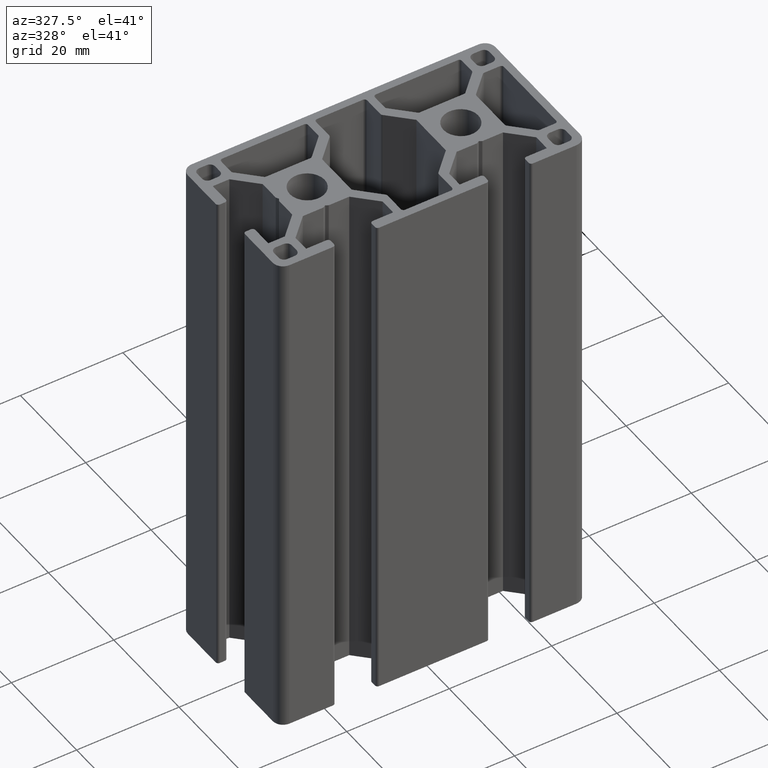
[diagram: clean part render]
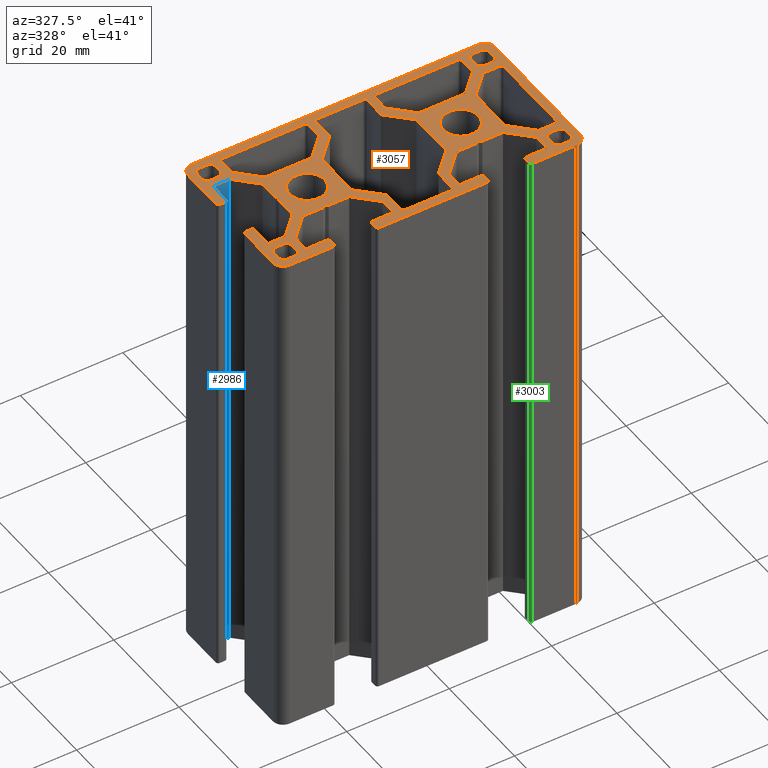
[diagram: same view with three faces highlighted in distinct colors, each labeled with its STEP entity id]
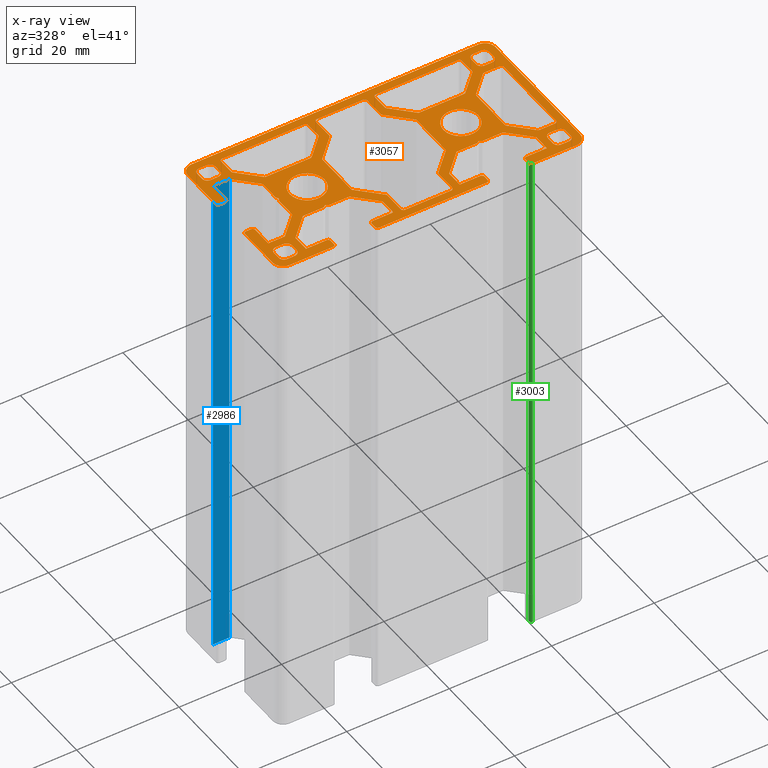
[diagram: x-ray of the same camera — body ghosted, the three highlighted faces saturated]
A machine part, auxiliary view with three faces highlighted in distinct colors.
The next image is the same camera in x-ray (body ghosted, the three faces saturated) — at least one of them is partly hidden behind the body in this view.
Their STEP definitions:

[orange] entity #3057 — the highlighted planar face has unit normal (0, 0, 1).
#17=FACE_BOUND('',#513,.T.);
#18=FACE_BOUND('',#514,.T.);
#19=FACE_BOUND('',#515,.T.);
#20=FACE_BOUND('',#516,.T.);
#21=FACE_BOUND('',#517,.T.);
#22=FACE_BOUND('',#518,.T.);
#23=FACE_BOUND('',#519,.T.);
#24=FACE_BOUND('',#520,.T.);
#25=FACE_BOUND('',#521,.T.);
#26=FACE_BOUND('',#522,.T.);
#37=CIRCLE('',#3070,0.5);
#39=CIRCLE('',#3074,0.5);
#41=CIRCLE('',#3078,0.5);
#43=CIRCLE('',#3082,0.5);
#45=CIRCLE('',#3086,0.5);
#47=CIRCLE('',#3090,0.5);
#49=CIRCLE('',#3093,0.5);
#51=CIRCLE('',#3097,0.499999999999993);
#53=CIRCLE('',#3101,0.500000000000007);
#55=CIRCLE('',#3105,0.500000000000012);
#57=CIRCLE('',#3111,0.5);
#59=CIRCLE('',#3115,0.5);
#61=CIRCLE('',#3119,0.5);
#63=CIRCLE('',#3123,0.500000000000041);
#65=CIRCLE('',#3129,0.5);
#67=CIRCLE('',#3133,0.5);
#69=CIRCLE('',#3137,0.5);
#71=CIRCLE('',#3141,0.5);
#73=CIRCLE('',#3145,0.5);
#75=CIRCLE('',#3149,0.5);
#77=CIRCLE('',#3153,3.3999992452);
#79=CIRCLE('',#3157,0.999999782051116);
#81=CIRCLE('',#3161,0.999999782051111);
#83=CIRCLE('',#3165,0.999999782051109);
#85=CIRCLE('',#3169,0.999999782051134);
#87=CIRCLE('',#3172,0.999999782051127);
#89=CIRCLE('',#3176,0.999999782051113);
#91=CIRCLE('',#3180,0.99999978205113);
#93=CIRCLE('',#3184,0.999999782051116);
#95=CIRCLE('',#3189,0.49999989102557);
#97=CIRCLE('',#3202,0.499999891025552);
#99=CIRCLE('',#3206,0.499999891025567);
#101=CIRCLE('',#3209,0.499999891025564);
#103=CIRCLE('',#3221,0.499999891025558);
#105=CIRCLE('',#3225,0.49999989102557);
#107=CIRCLE('',#3228,0.499999891025553);
#109=CIRCLE('',#3232,0.499999891025563);
#111=CIRCLE('',#3240,0.499999891025563);
#113=CIRCLE('',#3244,0.499999891025553);
#115=CIRCLE('',#3247,0.49999989102556);
#117=CIRCLE('',#3251,0.499999891025551);
#119=CIRCLE('',#3260,0.999999782051127);
#121=CIRCLE('',#3264,0.999999782051091);
#123=CIRCLE('',#3268,0.999999782051111);
#125=CIRCLE('',#3272,0.999999782051106);
#127=CIRCLE('',#3277,0.999999782051121);
#129=CIRCLE('',#3281,0.999999782051084);
#131=CIRCLE('',#3285,0.999999782051132);
#133=CIRCLE('',#3289,0.999999782051109);
#135=CIRCLE('',#3292,3.3999992452);
#137=CIRCLE('',#3295,0.5);
#139=CIRCLE('',#3299,0.5);
#141=CIRCLE('',#3303,0.5);
#143=CIRCLE('',#3307,0.5);
#145=CIRCLE('',#3311,0.5);
#147=CIRCLE('',#3315,0.5);
#149=CIRCLE('',#3323,2.00000000000001);
#150=CIRCLE('',#3324,1.99999999999999);
#151=CIRCLE('',#3325,2.00000000000001);
#152=CIRCLE('',#3326,2.00000000000001);
#359=FACE_OUTER_BOUND('',#512,.T.);
#512=EDGE_LOOP('',(#2498,#2499,#2500,#2501,#2502,#2503,#2504,#2505,#2506,
#2507,#2508,#2509,#2510,#2511,#2512,#2513,#2514,#2515,#2516,#2517,#2518,
#2519,#2520,#2521,#2522,#2523,#2524,#2525,#2526,#2527,#2528,#2529,#2530,
#2531,#2532,#2533,#2534,#2535,#2536,#2537,#2538,#2539,#2540,#2541,#2542,
#2543,#2544,#2545,#2546,#2547,#2548,#2549,#2550,#2551,#2552,#2553,#2554,
#2555,#2556));
#513=EDGE_LOOP('',(#2557,#2558,#2559,#2560,#2561,#2562,#2563,#2564,#2565,
#2566,#2567,#2568));
#514=EDGE_LOOP('',(#2569));
#515=EDGE_LOOP('',(#2570,#2571,#2572,#2573,#2574,#2575,#2576,#2577));
#516=EDGE_LOOP('',(#2578,#2579,#2580,#2581,#2582,#2583,#2584,#2585));
#517=EDGE_LOOP('',(#2586,#2587,#2588,#2589,#2590,#2591,#2592,#2593));
#518=EDGE_LOOP('',(#2594,#2595,#2596,#2597,#2598,#2599,#2600,#2601));
#519=EDGE_LOOP('',(#2602));
#520=EDGE_LOOP('',(#2603,#2604,#2605,#2606,#2607,#2608,#2609,#2610,#2611,
#2612,#2613,#2614));
#521=EDGE_LOOP('',(#2615,#2616,#2617,#2618,#2619,#2620,#2621,#2622,#2623,
#2624,#2625,#2626,#2627,#2628,#2629,#2630,#2631,#2632,#2633,#2634));
#522=EDGE_LOOP('',(#2635,#2636,#2637,#2638,#2639,#2640,#2641,#2642,#2643,
#2644,#2645,#2646));
#541=LINE('',#4212,#866);
#546=LINE('',#4226,#871);
#550=LINE('',#4238,#875);
#554=LINE('',#4250,#879);
#558=LINE('',#4262,#883);
#562=LINE('',#4274,#887);
#567=LINE('',#4292,#892);
#571=LINE('',#4304,#896);
#575=LINE('',#4316,#900);
#579=LINE('',#4328,#904);
#582=LINE('',#4334,#907);
#585=LINE('',#4340,#910);
#589=LINE('',#4352,#914);
#593=LINE('',#4364,#918);
#597=LINE('',#4376,#922);
#601=LINE('',#4388,#926);
#604=LINE('',#4394,#929);
#607=LINE('',#4399,#932);
#611=LINE('',#4412,#936);
#615=LINE('',#4424,#940);
#619=LINE('',#4436,#944);
#623=LINE('',#4448,#948);
#627=LINE('',#4460,#952);
#631=LINE('',#4471,#956);
#633=LINE('',#4481,#958);
#638=LINE('',#4495,#963);
#642=LINE('',#4507,#967);
#646=LINE('',#4519,#971);
#651=LINE('',#4537,#976);
#655=LINE('',#4549,#980);
#659=LINE('',#4561,#984);
#663=LINE('',#4572,#988);
#665=LINE('',#4577,#990);
#670=LINE('',#4591,#995);
#673=LINE('',#4597,#998);
#676=LINE('',#4603,#1001);
#679=LINE('',#4609,#1004);
#682=LINE('',#4615,#1007);
#685=LINE('',#4621,#1010);
#688=LINE('',#4627,#1013);
#691=LINE('',#4633,#1016);
#694=LINE('',#4639,#1019);
#697=LINE('',#4645,#1022);
#701=LINE('',#4657,#1026);
#706=LINE('',#4676,#1031);
#710=LINE('',#4684,#1035);
#713=LINE('',#4690,#1038);
#716=LINE('',#4696,#1041);
#719=LINE('',#4702,#1044);
#722=LINE('',#4708,#1047);
#725=LINE('',#4714,#1050);
#728=LINE('',#4720,#1053);
#731=LINE('',#4726,#1056);
#735=LINE('',#4738,#1060);
#741=LINE('',#4759,#1066);
#745=LINE('',#4770,#1070);
#747=LINE('',#4775,#1072);
#751=LINE('',#4783,#1076);
#754=LINE('',#4789,#1079);
#757=LINE('',#4795,#1082);
#761=LINE('',#4807,#1086);
#767=LINE('',#4828,#1092);
#771=LINE('',#4840,#1096);
#774=LINE('',#4846,#1099);
#777=LINE('',#4852,#1102);
#780=LINE('',#4858,#1105);
#783=LINE('',#4864,#1108);
#786=LINE('',#4869,#1111);
#790=LINE('',#4882,#1115);
#794=LINE('',#4894,#1119);
#798=LINE('',#4906,#1123);
#802=LINE('',#4917,#1127);
#804=LINE('',#4922,#1129);
#809=LINE('',#4936,#1134);
#813=LINE('',#4948,#1138);
#817=LINE('',#4960,#1142);
#822=LINE('',#4983,#1147);
#826=LINE('',#4995,#1151);
#830=LINE('',#5007,#1155);
#834=LINE('',#5019,#1159);
#838=LINE('',#5031,#1163);
#842=LINE('',#5042,#1167);
#846=LINE('',#5049,#1171);
#847=LINE('',#5052,#1172);
#850=LINE('',#5058,#1175);
#855=LINE('',#5067,#1180);
#856=LINE('',#5070,#1181);
#857=LINE('',#5074,#1182);
#858=LINE('',#5078,#1183);
#866=VECTOR('',#3343,8.64020001791525);
#871=VECTOR('',#3356,5.20416180714841);
#875=VECTOR('',#3368,3.02010095100455);
#879=VECTOR('',#3380,15.999996226);
#883=VECTOR('',#3392,3.02010095137318);
#887=VECTOR('',#3404,5.20416180007734);
#892=VECTOR('',#3423,4.06568511925241);
#896=VECTOR('',#3435,9.00000618999961);
#900=VECTOR('',#3447,4.06568686925198);
#904=VECTOR('',#3459,5.73258638729536);
#907=VECTOR('',#3464,9.05441357991975);
#910=VECTOR('',#3469,5.73258638729429);
#914=VECTOR('',#3481,4.06568687925335);
#918=VECTOR('',#3493,9.0000061899996);
#922=VECTOR('',#3505,4.06568512925378);
#926=VECTOR('',#3517,5.73258886216743);
#929=VECTOR('',#3522,9.05441357991973);
#932=VECTOR('',#3527,5.73258886216852);
#936=VECTOR('',#3539,8.64020001705809);
#940=VECTOR('',#3551,5.20416180714838);
#944=VECTOR('',#3563,3.02010029274194);
#948=VECTOR('',#3575,15.999996226);
#952=VECTOR('',#3587,3.02010028275144);
#956=VECTOR('',#3599,5.20416182110797);
#958=VECTOR('',#3609,1.49999965889779);
#963=VECTOR('',#3622,1.4999996629489);
#967=VECTOR('',#3634,1.49999966700003);
#971=VECTOR('',#3646,1.49999967105114);
#976=VECTOR('',#3665,1.49999966294891);
#980=VECTOR('',#3677,1.49999966294888);
#984=VECTOR('',#3689,1.49999966294891);
#988=VECTOR('',#3701,1.49999966294889);
#990=VECTOR('',#3705,0.99999979002555);
#995=VECTOR('',#3718,3.99999910997443);
#998=VECTOR('',#3723,3.22720707355987);
#1001=VECTOR('',#3728,5.61837536245042);
#1004=VECTOR('',#3733,4.00759166031446);
#1007=VECTOR('',#3738,0.59999987349379);
#1010=VECTOR('',#3743,0.599999864833555);
#1013=VECTOR('',#3748,4.00759166031446);
#1016=VECTOR('',#3753,5.61837537659261);
#1019=VECTOR('',#3758,3.22720706355981);
#1022=VECTOR('',#3763,3.99999911200001);
#1026=VECTOR('',#3775,0.99999979002555);
#1031=VECTOR('',#3794,3.22720707355982);
#1035=VECTOR('',#3800,5.6183753765926);
#1038=VECTOR('',#3805,4.00759166031445);
#1041=VECTOR('',#3810,0.599999864833577);
#1044=VECTOR('',#3815,0.59999987349382);
#1047=VECTOR('',#3820,4.00759166031444);
#1050=VECTOR('',#3825,5.61837536952152);
#1053=VECTOR('',#3830,3.22720707355984);
#1056=VECTOR('',#3835,3.99999911199999);
#1060=VECTOR('',#3847,0.999999775974458);
#1066=VECTOR('',#3867,0.999999775974434);
#1070=VECTOR('',#3879,3.99999910997446);
#1072=VECTOR('',#3883,4.00759166031445);
#1076=VECTOR('',#3889,5.61837537659259);
#1079=VECTOR('',#3894,3.22720707355982);
#1082=VECTOR('',#3899,3.99999910997446);
#1086=VECTOR('',#3911,0.999999775974434);
#1092=VECTOR('',#3931,0.999999775974458);
#1096=VECTOR('',#3943,3.999999112);
#1099=VECTOR('',#3948,3.22720707355984);
#1102=VECTOR('',#3953,5.61837536952152);
#1105=VECTOR('',#3958,4.00759166031444);
#1108=VECTOR('',#3963,0.599999873493814);
#1111=VECTOR('',#3968,0.599999864833579);
#1115=VECTOR('',#3980,1.49999965889782);
#1119=VECTOR('',#3992,1.4999996629489);
#1123=VECTOR('',#4004,1.49999967700004);
#1127=VECTOR('',#4016,1.49999967105114);
#1129=VECTOR('',#4020,1.49999966294889);
#1134=VECTOR('',#4033,1.49999966294891);
#1138=VECTOR('',#4045,1.49999966294888);
#1142=VECTOR('',#4057,1.49999966294891);
#1147=VECTOR('',#4082,5.20416180714842);
#1151=VECTOR('',#4094,8.64020001791525);
#1155=VECTOR('',#4106,5.20416180007734);
#1159=VECTOR('',#4118,3.02010095137319);
#1163=VECTOR('',#4130,15.999996226);
#1167=VECTOR('',#4142,3.02010095100455);
#1171=VECTOR('',#4148,8.49999766697447);
#1172=VECTOR('',#4151,8.50000432697444);
#1175=VECTOR('',#4156,8.50000432697448);
#1180=VECTOR('',#4163,8.49999766697443);
#1181=VECTOR('',#4168,21.0000019939489);
#1182=VECTOR('',#4171,26.);
#1183=VECTOR('',#4174,56.0000000000001);
#1191=VERTEX_POINT('',#4210);
#1192=VERTEX_POINT('',#4211);
#1195=VERTEX_POINT('',#4219);
#1197=VERTEX_POINT('',#4225);
#1199=VERTEX_POINT('',#4231);
#1201=VERTEX_POINT('',#4237);
#1203=VERTEX_POINT('',#4243);
#1205=VERTEX_POINT('',#4249);
#1207=VERTEX_POINT('',#4255);
#1209=VERTEX_POINT('',#4261);
#1211=VERTEX_POINT('',#4267);
#1213=VERTEX_POINT('',#4273);
#1215=VERTEX_POINT('',#4282);
#1216=VERTEX_POINT('',#4283);
#1219=VERTEX_POINT('',#4291);
#1221=VERTEX_POINT('',#4297);
#1223=VERTEX_POINT('',#4303);
#1225=VERTEX_POINT('',#4309);
#1227=VERTEX_POINT('',#4315);
#1229=VERTEX_POINT('',#4321);
#1231=VERTEX_POINT('',#4327);
#1233=VERTEX_POINT('',#4333);
#1235=VERTEX_POINT('',#4339);
#1237=VERTEX_POINT('',#4345);
#1239=VERTEX_POINT('',#4351);
#1241=VERTEX_POINT('',#4357);
#1243=VERTEX_POINT('',#4363);
#1245=VERTEX_POINT('',#4369);
#1247=VERTEX_POINT('',#4375);
#1249=VERTEX_POINT('',#4381);
#1251=VERTEX_POINT('',#4387);
#1253=VERTEX_POINT('',#4393);
#1255=VERTEX_POINT('',#4402);
#1256=VERTEX_POINT('',#4403);
#1259=VERTEX_POINT('',#4411);
#1261=VERTEX_POINT('',#4417);
#1263=VERTEX_POINT('',#4423);
#1265=VERTEX_POINT('',#4429);
#1267=VERTEX_POINT('',#4435);
#1269=VERTEX_POINT('',#4441);
#1271=VERTEX_POINT('',#4447);
#1273=VERTEX_POINT('',#4453);
#1275=VERTEX_POINT('',#4459);
#1277=VERTEX_POINT('',#4465);
#1279=VERTEX_POINT('',#4474);
#1281=VERTEX_POINT('',#4479);
#1282=VERTEX_POINT('',#4480);
#1285=VERTEX_POINT('',#4488);
#1287=VERTEX_POINT('',#4494);
#1289=VERTEX_POINT('',#4500);
#1291=VERTEX_POINT('',#4506);
#1293=VERTEX_POINT('',#4512);
#1295=VERTEX_POINT('',#4518);
#1297=VERTEX_POINT('',#4527);
#1298=VERTEX_POINT('',#4528);
#1301=VERTEX_POINT('',#4536);
#1303=VERTEX_POINT('',#4542);
#1305=VERTEX_POINT('',#4548);
#1307=VERTEX_POINT('',#4554);
#1309=VERTEX_POINT('',#4560);
#1311=VERTEX_POINT('',#4566);
#1313=VERTEX_POINT('',#4575);
#1314=VERTEX_POINT('',#4576);
#1317=VERTEX_POINT('',#4584);
#1319=VERTEX_POINT('',#4590);
#1321=VERTEX_POINT('',#4596);
#1323=VERTEX_POINT('',#4602);
#1325=VERTEX_POINT('',#4608);
#1327=VERTEX_POINT('',#4614);
#1329=VERTEX_POINT('',#4620);
#1331=VERTEX_POINT('',#4626);
#1333=VERTEX_POINT('',#4632);
#1335=VERTEX_POINT('',#4638);
#1337=VERTEX_POINT('',#4644);
#1339=VERTEX_POINT('',#4650);
#1341=VERTEX_POINT('',#4656);
#1343=VERTEX_POINT('',#4662);
#1345=VERTEX_POINT('',#4668);
#1347=VERTEX_POINT('',#4674);
#1348=VERTEX_POINT('',#4675);
#1351=VERTEX_POINT('',#4683);
#1353=VERTEX_POINT('',#4689);
#1355=VERTEX_POINT('',#4695);
#1357=VERTEX_POINT('',#4701);
#1359=VERTEX_POINT('',#4707);
#1361=VERTEX_POINT('',#4713);
#1363=VERTEX_POINT('',#4719);
#1365=VERTEX_POINT('',#4725);
#1367=VERTEX_POINT('',#4731);
#1369=VERTEX_POINT('',#4737);
#1371=VERTEX_POINT('',#4743);
#1373=VERTEX_POINT('',#4749);
#1374=VERTEX_POINT('',#4750);
#1377=VERTEX_POINT('',#4758);
#1379=VERTEX_POINT('',#4764);
#1381=VERTEX_POINT('',#4773);
#1382=VERTEX_POINT('',#4774);
#1385=VERTEX_POINT('',#4782);
#1387=VERTEX_POINT('',#4788);
#1389=VERTEX_POINT('',#4794);
#1391=VERTEX_POINT('',#4800);
#1393=VERTEX_POINT('',#4806);
#1395=VERTEX_POINT('',#4812);
#1397=VERTEX_POINT('',#4818);
#1398=VERTEX_POINT('',#4819);
#1401=VERTEX_POINT('',#4827);
#1403=VERTEX_POINT('',#4833);
#1405=VERTEX_POINT('',#4839);
#1407=VERTEX_POINT('',#4845);
#1409=VERTEX_POINT('',#4851);
#1411=VERTEX_POINT('',#4857);
#1413=VERTEX_POINT('',#4863);
#1415=VERTEX_POINT('',#4872);
#1416=VERTEX_POINT('',#4873);
#1419=VERTEX_POINT('',#4881);
#1421=VERTEX_POINT('',#4887);
#1423=VERTEX_POINT('',#4893);
#1425=VERTEX_POINT('',#4899);
#1427=VERTEX_POINT('',#4905);
#1429=VERTEX_POINT('',#4911);
#1431=VERTEX_POINT('',#4920);
#1432=VERTEX_POINT('',#4921);
#1435=VERTEX_POINT('',#4929);
#1437=VERTEX_POINT('',#4935);
#1439=VERTEX_POINT('',#4941);
#1441=VERTEX_POINT('',#4947);
#1443=VERTEX_POINT('',#4953);
#1445=VERTEX_POINT('',#4959);
#1447=VERTEX_POINT('',#4968);
#1449=VERTEX_POINT('',#4973);
#1450=VERTEX_POINT('',#4974);
#1453=VERTEX_POINT('',#4982);
#1455=VERTEX_POINT('',#4988);
#1457=VERTEX_POINT('',#4994);
#1459=VERTEX_POINT('',#5000);
#1461=VERTEX_POINT('',#5006);
#1463=VERTEX_POINT('',#5012);
#1465=VERTEX_POINT('',#5018);
#1467=VERTEX_POINT('',#5024);
#1469=VERTEX_POINT('',#5030);
#1471=VERTEX_POINT('',#5036);
#1474=VERTEX_POINT('',#5047);
#1475=VERTEX_POINT('',#5051);
#1477=VERTEX_POINT('',#5057);
#1480=VERTEX_POINT('',#5065);
#1481=VERTEX_POINT('',#5071);
#1482=VERTEX_POINT('',#5073);
#1483=VERTEX_POINT('',#5075);
#1484=VERTEX_POINT('',#5077);
#1489=EDGE_CURVE('',#1191,#1192,#541,.T.);
#1493=EDGE_CURVE('',#1192,#1195,#37,.T.);
#1496=EDGE_CURVE('',#1195,#1197,#546,.T.);
#1499=EDGE_CURVE('',#1197,#1199,#39,.T.);
#1502=EDGE_CURVE('',#1199,#1201,#550,.T.);
#1505=EDGE_CURVE('',#1201,#1203,#41,.T.);
#1508=EDGE_CURVE('',#1203,#1205,#554,.T.);
#1511=EDGE_CURVE('',#1205,#1207,#43,.T.);
#1514=EDGE_CURVE('',#1207,#1209,#558,.T.);
#1517=EDGE_CURVE('',#1209,#1211,#45,.T.);
#1520=EDGE_CURVE('',#1211,#1213,#562,.T.);
#1523=EDGE_CURVE('',#1213,#1191,#47,.T.);
#1525=EDGE_CURVE('',#1215,#1216,#49,.T.);
#1529=EDGE_CURVE('',#1216,#1219,#567,.T.);
#1532=EDGE_CURVE('',#1219,#1221,#51,.T.);
#1535=EDGE_CURVE('',#1221,#1223,#571,.T.);
#1538=EDGE_CURVE('',#1223,#1225,#53,.T.);
#1541=EDGE_CURVE('',#1225,#1227,#575,.T.);
#1544=EDGE_CURVE('',#1227,#1229,#55,.T.);
#1547=EDGE_CURVE('',#1229,#1231,#579,.T.);
#1550=EDGE_CURVE('',#1231,#1233,#582,.T.);
#1553=EDGE_CURVE('',#1233,#1235,#585,.T.);
#1556=EDGE_CURVE('',#1235,#1237,#57,.T.);
#1559=EDGE_CURVE('',#1237,#1239,#589,.T.);
#1562=EDGE_CURVE('',#1239,#1241,#59,.T.);
#1565=EDGE_CURVE('',#1241,#1243,#593,.T.);
#1568=EDGE_CURVE('',#1243,#1245,#61,.T.);
#1571=EDGE_CURVE('',#1245,#1247,#597,.T.);
#1574=EDGE_CURVE('',#1247,#1249,#63,.T.);
#1577=EDGE_CURVE('',#1249,#1251,#601,.T.);
#1580=EDGE_CURVE('',#1251,#1253,#604,.T.);
#1583=EDGE_CURVE('',#1253,#1215,#607,.T.);
#1585=EDGE_CURVE('',#1255,#1256,#65,.T.);
#1589=EDGE_CURVE('',#1259,#1255,#611,.T.);
#1592=EDGE_CURVE('',#1261,#1259,#67,.T.);
#1595=EDGE_CURVE('',#1263,#1261,#615,.T.);
#1598=EDGE_CURVE('',#1265,#1263,#69,.T.);
#1601=EDGE_CURVE('',#1267,#1265,#619,.T.);
#1604=EDGE_CURVE('',#1269,#1267,#71,.T.);
#1607=EDGE_CURVE('',#1271,#1269,#623,.T.);
#1610=EDGE_CURVE('',#1273,#1271,#73,.T.);
#1613=EDGE_CURVE('',#1275,#1273,#627,.T.);
#1616=EDGE_CURVE('',#1277,#1275,#75,.T.);
#1619=EDGE_CURVE('',#1256,#1277,#631,.T.);
#1621=EDGE_CURVE('',#1279,#1279,#77,.T.);
#1623=EDGE_CURVE('',#1281,#1282,#633,.T.);
#1627=EDGE_CURVE('',#1285,#1281,#79,.T.);
#1630=EDGE_CURVE('',#1287,#1285,#638,.T.);
#1633=EDGE_CURVE('',#1289,#1287,#81,.T.);
#1636=EDGE_CURVE('',#1291,#1289,#642,.T.);
#1639=EDGE_CURVE('',#1293,#1291,#83,.T.);
#1642=EDGE_CURVE('',#1295,#1293,#646,.T.);
#1645=EDGE_CURVE('',#1282,#1295,#85,.T.);
#1647=EDGE_CURVE('',#1297,#1298,#87,.T.);
#1651=EDGE_CURVE('',#1298,#1301,#651,.T.);
#1654=EDGE_CURVE('',#1301,#1303,#89,.T.);
#1657=EDGE_CURVE('',#1303,#1305,#655,.T.);
#1660=EDGE_CURVE('',#1305,#1307,#91,.T.);
#1663=EDGE_CURVE('',#1307,#1309,#659,.T.);
#1666=EDGE_CURVE('',#1309,#1311,#93,.T.);
#1669=EDGE_CURVE('',#1311,#1297,#663,.T.);
#1671=EDGE_CURVE('',#1313,#1314,#665,.T.);
#1675=EDGE_CURVE('',#1317,#1313,#95,.T.);
#1678=EDGE_CURVE('',#1319,#1317,#670,.T.);
#1681=EDGE_CURVE('',#1321,#1319,#673,.T.);
#1684=EDGE_CURVE('',#1323,#1321,#676,.T.);
#1687=EDGE_CURVE('',#1325,#1323,#679,.T.);
#1690=EDGE_CURVE('',#1327,#1325,#682,.T.);
#1693=EDGE_CURVE('',#1329,#1327,#685,.T.);
#1696=EDGE_CURVE('',#1331,#1329,#688,.T.);
#1699=EDGE_CURVE('',#1333,#1331,#691,.T.);
#1702=EDGE_CURVE('',#1335,#1333,#694,.T.);
#1705=EDGE_CURVE('',#1337,#1335,#697,.T.);
#1708=EDGE_CURVE('',#1339,#1337,#97,.T.);
#1711=EDGE_CURVE('',#1341,#1339,#701,.T.);
#1714=EDGE_CURVE('',#1343,#1341,#99,.T.);
#1717=EDGE_CURVE('',#1314,#1345,#101,.T.);
#1720=EDGE_CURVE('',#1347,#1348,#706,.T.);
#1724=EDGE_CURVE('',#1348,#1351,#710,.T.);
#1727=EDGE_CURVE('',#1351,#1353,#713,.T.);
#1730=EDGE_CURVE('',#1353,#1355,#716,.T.);
#1733=EDGE_CURVE('',#1355,#1357,#719,.T.);
#1736=EDGE_CURVE('',#1357,#1359,#722,.T.);
#1739=EDGE_CURVE('',#1359,#1361,#725,.T.);
#1742=EDGE_CURVE('',#1361,#1363,#728,.T.);
#1745=EDGE_CURVE('',#1363,#1365,#731,.T.);
#1748=EDGE_CURVE('',#1365,#1367,#103,.T.);
#1751=EDGE_CURVE('',#1367,#1369,#735,.T.);
#1754=EDGE_CURVE('',#1369,#1371,#105,.T.);
#1757=EDGE_CURVE('',#1373,#1374,#107,.T.);
#1761=EDGE_CURVE('',#1374,#1377,#741,.T.);
#1764=EDGE_CURVE('',#1377,#1379,#109,.T.);
#1767=EDGE_CURVE('',#1379,#1347,#745,.T.);
#1769=EDGE_CURVE('',#1381,#1382,#747,.T.);
#1773=EDGE_CURVE('',#1385,#1381,#751,.T.);
#1776=EDGE_CURVE('',#1387,#1385,#754,.T.);
#1779=EDGE_CURVE('',#1389,#1387,#757,.T.);
#1782=EDGE_CURVE('',#1391,#1389,#111,.T.);
#1785=EDGE_CURVE('',#1393,#1391,#761,.T.);
#1788=EDGE_CURVE('',#1395,#1393,#113,.T.);
#1791=EDGE_CURVE('',#1397,#1398,#115,.T.);
#1795=EDGE_CURVE('',#1401,#1397,#767,.T.);
#1798=EDGE_CURVE('',#1403,#1401,#117,.T.);
#1801=EDGE_CURVE('',#1405,#1403,#771,.T.);
#1804=EDGE_CURVE('',#1407,#1405,#774,.T.);
#1807=EDGE_CURVE('',#1409,#1407,#777,.T.);
#1810=EDGE_CURVE('',#1411,#1409,#780,.T.);
#1813=EDGE_CURVE('',#1413,#1411,#783,.T.);
#1816=EDGE_CURVE('',#1382,#1413,#786,.T.);
#1818=EDGE_CURVE('',#1415,#1416,#119,.T.);
#1822=EDGE_CURVE('',#1416,#1419,#790,.T.);
#1825=EDGE_CURVE('',#1419,#1421,#121,.T.);
#1828=EDGE_CURVE('',#1421,#1423,#794,.T.);
#1831=EDGE_CURVE('',#1423,#1425,#123,.T.);
#1834=EDGE_CURVE('',#1425,#1427,#798,.T.);
#1837=EDGE_CURVE('',#1427,#1429,#125,.T.);
#1840=EDGE_CURVE('',#1429,#1415,#802,.T.);
#1842=EDGE_CURVE('',#1431,#1432,#804,.T.);
#1846=EDGE_CURVE('',#1435,#1431,#127,.T.);
#1849=EDGE_CURVE('',#1437,#1435,#809,.T.);
#1852=EDGE_CURVE('',#1439,#1437,#129,.T.);
#1855=EDGE_CURVE('',#1441,#1439,#813,.T.);
#1858=EDGE_CURVE('',#1443,#1441,#131,.T.);
#1861=EDGE_CURVE('',#1445,#1443,#817,.T.);
#1864=EDGE_CURVE('',#1432,#1445,#133,.T.);
#1866=EDGE_CURVE('',#1447,#1447,#135,.T.);
#1868=EDGE_CURVE('',#1449,#1450,#137,.T.);
#1872=EDGE_CURVE('',#1453,#1449,#822,.T.);
#1875=EDGE_CURVE('',#1455,#1453,#139,.T.);
#1878=EDGE_CURVE('',#1457,#1455,#826,.T.);
#1881=EDGE_CURVE('',#1459,#1457,#141,.T.);
#1884=EDGE_CURVE('',#1461,#1459,#830,.T.);
#1887=EDGE_CURVE('',#1463,#1461,#143,.T.);
#1890=EDGE_CURVE('',#1465,#1463,#834,.T.);
#1893=EDGE_CURVE('',#1467,#1465,#145,.T.);
#1896=EDGE_CURVE('',#1469,#1467,#838,.T.);
#1899=EDGE_CURVE('',#1471,#1469,#147,.T.);
#1902=EDGE_CURVE('',#1450,#1471,#842,.T.);
#1906=EDGE_CURVE('',#1474,#1345,#846,.T.);
#1907=EDGE_CURVE('',#1343,#1475,#847,.T.);
#1910=EDGE_CURVE('',#1395,#1477,#850,.T.);
#1915=EDGE_CURVE('',#1480,#1371,#855,.T.);
#1916=EDGE_CURVE('',#1477,#1474,#149,.T.);
#1917=EDGE_CURVE('',#1373,#1398,#856,.T.);
#1918=EDGE_CURVE('',#1481,#1480,#150,.T.);
#1919=EDGE_CURVE('',#1482,#1481,#857,.T.);
#1920=EDGE_CURVE('',#1483,#1482,#151,.T.);
#1921=EDGE_CURVE('',#1484,#1483,#858,.T.);
#1922=EDGE_CURVE('',#1475,#1484,#152,.T.);
#2498=ORIENTED_EDGE('',*,*,#1714,.T.);
#2499=ORIENTED_EDGE('',*,*,#1711,.T.);
#2500=ORIENTED_EDGE('',*,*,#1708,.T.);
#2501=ORIENTED_EDGE('',*,*,#1705,.T.);
#2502=ORIENTED_EDGE('',*,*,#1702,.T.);
#2503=ORIENTED_EDGE('',*,*,#1699,.T.);
#2504=ORIENTED_EDGE('',*,*,#1696,.T.);
#2505=ORIENTED_EDGE('',*,*,#1693,.T.);
#2506=ORIENTED_EDGE('',*,*,#1690,.T.);
#2507=ORIENTED_EDGE('',*,*,#1687,.T.);
#2508=ORIENTED_EDGE('',*,*,#1684,.T.);
#2509=ORIENTED_EDGE('',*,*,#1681,.T.);
#2510=ORIENTED_EDGE('',*,*,#1678,.T.);
#2511=ORIENTED_EDGE('',*,*,#1675,.T.);
#2512=ORIENTED_EDGE('',*,*,#1671,.T.);
#2513=ORIENTED_EDGE('',*,*,#1717,.T.);
#2514=ORIENTED_EDGE('',*,*,#1906,.F.);
#2515=ORIENTED_EDGE('',*,*,#1916,.F.);
#2516=ORIENTED_EDGE('',*,*,#1910,.F.);
#2517=ORIENTED_EDGE('',*,*,#1788,.T.);
#2518=ORIENTED_EDGE('',*,*,#1785,.T.);
#2519=ORIENTED_EDGE('',*,*,#1782,.T.);
#2520=ORIENTED_EDGE('',*,*,#1779,.T.);
#2521=ORIENTED_EDGE('',*,*,#1776,.T.);
#2522=ORIENTED_EDGE('',*,*,#1773,.T.);
#2523=ORIENTED_EDGE('',*,*,#1769,.T.);
#2524=ORIENTED_EDGE('',*,*,#1816,.T.);
#2525=ORIENTED_EDGE('',*,*,#1813,.T.);
#2526=ORIENTED_EDGE('',*,*,#1810,.T.);
#2527=ORIENTED_EDGE('',*,*,#1807,.T.);
#2528=ORIENTED_EDGE('',*,*,#1804,.T.);
#2529=ORIENTED_EDGE('',*,*,#1801,.T.);
#2530=ORIENTED_EDGE('',*,*,#1798,.T.);
#2531=ORIENTED_EDGE('',*,*,#1795,.T.);
#2532=ORIENTED_EDGE('',*,*,#1791,.T.);
#2533=ORIENTED_EDGE('',*,*,#1917,.F.);
#2534=ORIENTED_EDGE('',*,*,#1757,.T.);
#2535=ORIENTED_EDGE('',*,*,#1761,.T.);
#2536=ORIENTED_EDGE('',*,*,#1764,.T.);
#2537=ORIENTED_EDGE('',*,*,#1767,.T.);
#2538=ORIENTED_EDGE('',*,*,#1720,.T.);
#2539=ORIENTED_EDGE('',*,*,#1724,.T.);
#2540=ORIENTED_EDGE('',*,*,#1727,.T.);
#2541=ORIENTED_EDGE('',*,*,#1730,.T.);
#2542=ORIENTED_EDGE('',*,*,#1733,.T.);
#2543=ORIENTED_EDGE('',*,*,#1736,.T.);
#2544=ORIENTED_EDGE('',*,*,#1739,.T.);
#2545=ORIENTED_EDGE('',*,*,#1742,.T.);
#2546=ORIENTED_EDGE('',*,*,#1745,.T.);
#2547=ORIENTED_EDGE('',*,*,#1748,.T.);
#2548=ORIENTED_EDGE('',*,*,#1751,.T.);
#2549=ORIENTED_EDGE('',*,*,#1754,.T.);
#2550=ORIENTED_EDGE('',*,*,#1915,.F.);
#2551=ORIENTED_EDGE('',*,*,#1918,.F.);
#2552=ORIENTED_EDGE('',*,*,#1919,.F.);
#2553=ORIENTED_EDGE('',*,*,#1920,.F.);
#2554=ORIENTED_EDGE('',*,*,#1921,.F.);
#2555=ORIENTED_EDGE('',*,*,#1922,.F.);
#2556=ORIENTED_EDGE('',*,*,#1907,.F.);
#2557=ORIENTED_EDGE('',*,*,#1868,.T.);
#2558=ORIENTED_EDGE('',*,*,#1902,.T.);
#2559=ORIENTED_EDGE('',*,*,#1899,.T.);
#2560=ORIENTED_EDGE('',*,*,#1896,.T.);
#2561=ORIENTED_EDGE('',*,*,#1893,.T.);
#2562=ORIENTED_EDGE('',*,*,#1890,.T.);
#2563=ORIENTED_EDGE('',*,*,#1887,.T.);
#2564=ORIENTED_EDGE('',*,*,#1884,.T.);
#2565=ORIENTED_EDGE('',*,*,#1881,.T.);
#2566=ORIENTED_EDGE('',*,*,#1878,.T.);
#2567=ORIENTED_EDGE('',*,*,#1875,.T.);
#2568=ORIENTED_EDGE('',*,*,#1872,.T.);
#2569=ORIENTED_EDGE('',*,*,#1866,.T.);
#2570=ORIENTED_EDGE('',*,*,#1842,.T.);
#2571=ORIENTED_EDGE('',*,*,#1864,.T.);
#2572=ORIENTED_EDGE('',*,*,#1861,.T.);
#2573=ORIENTED_EDGE('',*,*,#1858,.T.);
#2574=ORIENTED_EDGE('',*,*,#1855,.T.);
#2575=ORIENTED_EDGE('',*,*,#1852,.T.);
#2576=ORIENTED_EDGE('',*,*,#1849,.T.);
#2577=ORIENTED_EDGE('',*,*,#1846,.T.);
#2578=ORIENTED_EDGE('',*,*,#1818,.T.);
#2579=ORIENTED_EDGE('',*,*,#1822,.T.);
#2580=ORIENTED_EDGE('',*,*,#1825,.T.);
#2581=ORIENTED_EDGE('',*,*,#1828,.T.);
#2582=ORIENTED_EDGE('',*,*,#1831,.T.);
#2583=ORIENTED_EDGE('',*,*,#1834,.T.);
#2584=ORIENTED_EDGE('',*,*,#1837,.T.);
#2585=ORIENTED_EDGE('',*,*,#1840,.T.);
#2586=ORIENTED_EDGE('',*,*,#1647,.T.);
#2587=ORIENTED_EDGE('',*,*,#1651,.T.);
#2588=ORIENTED_EDGE('',*,*,#1654,.T.);
#2589=ORIENTED_EDGE('',*,*,#1657,.T.);
#2590=ORIENTED_EDGE('',*,*,#1660,.T.);
#2591=ORIENTED_EDGE('',*,*,#1663,.T.);
#2592=ORIENTED_EDGE('',*,*,#1666,.T.);
#2593=ORIENTED_EDGE('',*,*,#1669,.T.);
#2594=ORIENTED_EDGE('',*,*,#1623,.T.);
#2595=ORIENTED_EDGE('',*,*,#1645,.T.);
#2596=ORIENTED_EDGE('',*,*,#1642,.T.);
#2597=ORIENTED_EDGE('',*,*,#1639,.T.);
#2598=ORIENTED_EDGE('',*,*,#1636,.T.);
#2599=ORIENTED_EDGE('',*,*,#1633,.T.);
#2600=ORIENTED_EDGE('',*,*,#1630,.T.);
#2601=ORIENTED_EDGE('',*,*,#1627,.T.);
#2602=ORIENTED_EDGE('',*,*,#1621,.T.);
#2603=ORIENTED_EDGE('',*,*,#1585,.T.);
#2604=ORIENTED_EDGE('',*,*,#1619,.T.);
#2605=ORIENTED_EDGE('',*,*,#1616,.T.);
#2606=ORIENTED_EDGE('',*,*,#1613,.T.);
#2607=ORIENTED_EDGE('',*,*,#1610,.T.);
#2608=ORIENTED_EDGE('',*,*,#1607,.T.);
#2609=ORIENTED_EDGE('',*,*,#1604,.T.);
#2610=ORIENTED_EDGE('',*,*,#1601,.T.);
#2611=ORIENTED_EDGE('',*,*,#1598,.T.);
#2612=ORIENTED_EDGE('',*,*,#1595,.T.);
#2613=ORIENTED_EDGE('',*,*,#1592,.T.);
#2614=ORIENTED_EDGE('',*,*,#1589,.T.);
#2615=ORIENTED_EDGE('',*,*,#1525,.T.);
#2616=ORIENTED_EDGE('',*,*,#1529,.T.);
#2617=ORIENTED_EDGE('',*,*,#1532,.T.);
#2618=ORIENTED_EDGE('',*,*,#1535,.T.);
#2619=ORIENTED_EDGE('',*,*,#1538,.T.);
#2620=ORIENTED_EDGE('',*,*,#1541,.T.);
#2621=ORIENTED_EDGE('',*,*,#1544,.T.);
#2622=ORIENTED_EDGE('',*,*,#1547,.T.);
#2623=ORIENTED_EDGE('',*,*,#1550,.T.);
#2624=ORIENTED_EDGE('',*,*,#1553,.T.);
#2625=ORIENTED_EDGE('',*,*,#1556,.T.);
#2626=ORIENTED_EDGE('',*,*,#1559,.T.);
#2627=ORIENTED_EDGE('',*,*,#1562,.T.);
#2628=ORIENTED_EDGE('',*,*,#1565,.T.);
#2629=ORIENTED_EDGE('',*,*,#1568,.T.);
#2630=ORIENTED_EDGE('',*,*,#1571,.T.);
#2631=ORIENTED_EDGE('',*,*,#1574,.T.);
#2632=ORIENTED_EDGE('',*,*,#1577,.T.);
#2633=ORIENTED_EDGE('',*,*,#1580,.T.);
#2634=ORIENTED_EDGE('',*,*,#1583,.T.);
#2635=ORIENTED_EDGE('',*,*,#1489,.T.);
#2636=ORIENTED_EDGE('',*,*,#1493,.T.);
#2637=ORIENTED_EDGE('',*,*,#1496,.T.);
#2638=ORIENTED_EDGE('',*,*,#1499,.T.);
#2639=ORIENTED_EDGE('',*,*,#1502,.T.);
#2640=ORIENTED_EDGE('',*,*,#1505,.T.);
#2641=ORIENTED_EDGE('',*,*,#1508,.T.);
#2642=ORIENTED_EDGE('',*,*,#1511,.T.);
#2643=ORIENTED_EDGE('',*,*,#1514,.T.);
#2644=ORIENTED_EDGE('',*,*,#1517,.T.);
#2645=ORIENTED_EDGE('',*,*,#1520,.T.);
#2646=ORIENTED_EDGE('',*,*,#1523,.T.);
#2910=PLANE('',#3322);
#3057=ADVANCED_FACE('',(#359,#17,#18,#19,#20,#21,#22,#23,#24,#25,#26),#2910,
 .T.);
#3070=AXIS2_PLACEMENT_3D('',#4220,#3349,#3350);
#3074=AXIS2_PLACEMENT_3D('',#4232,#3361,#3362);
#3078=AXIS2_PLACEMENT_3D('',#4244,#3373,#3374);
#3082=AXIS2_PLACEMENT_3D('',#4256,#3385,#3386);
#3086=AXIS2_PLACEMENT_3D('',#4268,#3397,#3398);
#3090=AXIS2_PLACEMENT_3D('',#4279,#3409,#3410);
#3093=AXIS2_PLACEMENT_3D('',#4284,#3415,#3416);
#3097=AXIS2_PLACEMENT_3D('',#4298,#3428,#3429);
#3101=AXIS2_PLACEMENT_3D('',#4310,#3440,#3441);
#3105=AXIS2_PLACEMENT_3D('',#4322,#3452,#3453);
#3111=AXIS2_PLACEMENT_3D('',#4346,#3474,#3475);
#3115=AXIS2_PLACEMENT_3D('',#4358,#3486,#3487);
#3119=AXIS2_PLACEMENT_3D('',#4370,#3498,#3499);
#3123=AXIS2_PLACEMENT_3D('',#4382,#3510,#3511);
#3129=AXIS2_PLACEMENT_3D('',#4404,#3531,#3532);
#3133=AXIS2_PLACEMENT_3D('',#4418,#3544,#3545);
#3137=AXIS2_PLACEMENT_3D('',#4430,#3556,#3557);
#3141=AXIS2_PLACEMENT_3D('',#4442,#3568,#3569);
#3145=AXIS2_PLACEMENT_3D('',#4454,#3580,#3581);
#3149=AXIS2_PLACEMENT_3D('',#4466,#3592,#3593);
#3153=AXIS2_PLACEMENT_3D('',#4475,#3603,#3604);
#3157=AXIS2_PLACEMENT_3D('',#4489,#3615,#3616);
#3161=AXIS2_PLACEMENT_3D('',#4501,#3627,#3628);
#3165=AXIS2_PLACEMENT_3D('',#4513,#3639,#3640);
#3169=AXIS2_PLACEMENT_3D('',#4524,#3651,#3652);
#3172=AXIS2_PLACEMENT_3D('',#4529,#3657,#3658);
#3176=AXIS2_PLACEMENT_3D('',#4543,#3670,#3671);
#3180=AXIS2_PLACEMENT_3D('',#4555,#3682,#3683);
#3184=AXIS2_PLACEMENT_3D('',#4567,#3694,#3695);
#3189=AXIS2_PLACEMENT_3D('',#4585,#3711,#3712);
#3202=AXIS2_PLACEMENT_3D('',#4651,#3768,#3769);
#3206=AXIS2_PLACEMENT_3D('',#4663,#3780,#3781);
#3209=AXIS2_PLACEMENT_3D('',#4669,#3787,#3788);
#3221=AXIS2_PLACEMENT_3D('',#4732,#3840,#3841);
#3225=AXIS2_PLACEMENT_3D('',#4744,#3852,#3853);
#3228=AXIS2_PLACEMENT_3D('',#4751,#3859,#3860);
#3232=AXIS2_PLACEMENT_3D('',#4765,#3872,#3873);
#3240=AXIS2_PLACEMENT_3D('',#4801,#3904,#3905);
#3244=AXIS2_PLACEMENT_3D('',#4813,#3916,#3917);
#3247=AXIS2_PLACEMENT_3D('',#4820,#3923,#3924);
#3251=AXIS2_PLACEMENT_3D('',#4834,#3936,#3937);
#3260=AXIS2_PLACEMENT_3D('',#4874,#3972,#3973);
#3264=AXIS2_PLACEMENT_3D('',#4888,#3985,#3986);
#3268=AXIS2_PLACEMENT_3D('',#4900,#3997,#3998);
#3272=AXIS2_PLACEMENT_3D('',#4912,#4009,#4010);
#3277=AXIS2_PLACEMENT_3D('',#4930,#4026,#4027);
#3281=AXIS2_PLACEMENT_3D('',#4942,#4038,#4039);
#3285=AXIS2_PLACEMENT_3D('',#4954,#4050,#4051);
#3289=AXIS2_PLACEMENT_3D('',#4965,#4062,#4063);
#3292=AXIS2_PLACEMENT_3D('',#4969,#4068,#4069);
#3295=AXIS2_PLACEMENT_3D('',#4975,#4074,#4075);
#3299=AXIS2_PLACEMENT_3D('',#4989,#4087,#4088);
#3303=AXIS2_PLACEMENT_3D('',#5001,#4099,#4100);
#3307=AXIS2_PLACEMENT_3D('',#5013,#4111,#4112);
#3311=AXIS2_PLACEMENT_3D('',#5025,#4123,#4124);
#3315=AXIS2_PLACEMENT_3D('',#5037,#4135,#4136);
#3322=AXIS2_PLACEMENT_3D('',#5068,#4164,#4165);
#3323=AXIS2_PLACEMENT_3D('',#5069,#4166,#4167);
#3324=AXIS2_PLACEMENT_3D('',#5072,#4169,#4170);
#3325=AXIS2_PLACEMENT_3D('',#5076,#4172,#4173);
#3326=AXIS2_PLACEMENT_3D('',#5079,#4175,#4176);
#3343=DIRECTION('',(-1.,0.,0.));
#3349=DIRECTION('center_axis',(0.,0.,-1.));
#3350=DIRECTION('ref_axis',(-0.707106780296606,-0.707106782076489,0.));
#3356=DIRECTION('',(-0.707106782076487,0.707106780296608,0.));
#3361=DIRECTION('center_axis',(0.,0.,-1.));
#3362=DIRECTION('ref_axis',(-1.,0.,0.));
#3368=DIRECTION('',(0.,1.,0.));
#3373=DIRECTION('center_axis',(0.,0.,-1.));
#3374=DIRECTION('ref_axis',(0.,1.,0.));
#3380=DIRECTION('',(1.,0.,0.));
#3385=DIRECTION('center_axis',(0.,0.,-1.));
#3386=DIRECTION('ref_axis',(1.,0.,0.));
#3392=DIRECTION('',(3.67611229724079E-16,-1.,0.));
#3397=DIRECTION('center_axis',(0.,0.,-1.));
#3398=DIRECTION('ref_axis',(0.707106781186543,-0.707106781186552,0.));
#3404=DIRECTION('',(-0.707106781186552,-0.707106781186543,0.));
#3409=DIRECTION('center_axis',(0.,0.,-1.));
#3410=DIRECTION('ref_axis',(0.,-1.,0.));
#3415=DIRECTION('center_axis',(0.,0.,1.));
#3416=DIRECTION('ref_axis',(0.707106781186634,-0.707106781186461,0.));
#3423=DIRECTION('',(0.,-1.,0.));
#3428=DIRECTION('center_axis',(0.,0.,-1.));
#3429=DIRECTION('ref_axis',(1.44328993201272E-14,-1.,0.));
#3435=DIRECTION('',(-1.,0.,0.));
#3440=DIRECTION('center_axis',(0.,0.,-1.));
#3441=DIRECTION('ref_axis',(-1.,-1.33226762955017E-14,0.));
#3447=DIRECTION('',(0.,1.,0.));
#3452=DIRECTION('center_axis',(0.,0.,1.));
#3453=DIRECTION('ref_axis',(-1.,3.55271367880042E-14,0.));
#3459=DIRECTION('',(-0.707106781186456,0.707106781186639,0.));
#3464=DIRECTION('',(0.,1.,0.));
#3469=DIRECTION('',(0.707106781186578,0.707106781186517,0.));
#3474=DIRECTION('center_axis',(0.,0.,1.));
#3475=DIRECTION('ref_axis',(-0.707106781186542,0.707106781186553,0.));
#3481=DIRECTION('',(3.54992889240344E-15,1.,0.));
#3486=DIRECTION('center_axis',(0.,0.,-1.));
#3487=DIRECTION('ref_axis',(0.,1.,0.));
#3493=DIRECTION('',(1.,0.,0.));
#3498=DIRECTION('center_axis',(0.,0.,-1.));
#3499=DIRECTION('ref_axis',(1.,0.,0.));
#3505=DIRECTION('',(0.,-1.,0.));
#3510=DIRECTION('center_axis',(0.,0.,1.));
#3511=DIRECTION('ref_axis',(1.,-8.88178419700053E-15,0.));
#3517=DIRECTION('',(0.70710678118658,-0.707106781186515,0.));
#3522=DIRECTION('',(1.59401812085714E-15,-1.,0.));
#3527=DIRECTION('',(-0.707106781186458,-0.707106781186637,0.));
#3531=DIRECTION('center_axis',(0.,0.,-1.));
#3532=DIRECTION('ref_axis',(-0.707106780273632,0.707106782099463,0.));
#3539=DIRECTION('',(0.,1.,0.));
#3544=DIRECTION('center_axis',(0.,0.,-1.));
#3545=DIRECTION('ref_axis',(-1.,0.,0.));
#3551=DIRECTION('',(-0.707106782076486,0.707106780296609,0.));
#3556=DIRECTION('center_axis',(0.,0.,-1.));
#3557=DIRECTION('ref_axis',(-0.707106780296614,-0.707106782076481,0.));
#3563=DIRECTION('',(-1.,0.,0.));
#3568=DIRECTION('center_axis',(0.,0.,-1.));
#3569=DIRECTION('ref_axis',(0.,-1.,0.));
#3575=DIRECTION('',(2.77555821624769E-16,-1.,0.));
#3580=DIRECTION('center_axis',(0.,0.,-1.));
#3581=DIRECTION('ref_axis',(1.,0.,0.));
#3587=DIRECTION('',(1.,0.,0.));
#3592=DIRECTION('center_axis',(0.,0.,-1.));
#3593=DIRECTION('ref_axis',(0.,1.,0.));
#3599=DIRECTION('',(0.707106782099464,0.707106780273631,0.));
#3603=DIRECTION('center_axis',(0.,0.,-1.));
#3604=DIRECTION('ref_axis',(-1.,0.,0.));
#3609=DIRECTION('',(0.,-1.,0.));
#3615=DIRECTION('center_axis',(0.,0.,-1.));
#3616=DIRECTION('ref_axis',(-1.,-8.88178613277659E-15,0.));
#3622=DIRECTION('',(1.,-1.92438700842811E-14,0.));
#3627=DIRECTION('center_axis',(0.,0.,-1.));
#3628=DIRECTION('ref_axis',(2.22044653319417E-14,-1.,0.));
#3634=DIRECTION('',(2.07241677271011E-14,1.,0.));
#3639=DIRECTION('center_axis',(0.,0.,-1.));
#3640=DIRECTION('ref_axis',(1.,4.05111810239797E-9,0.));
#3646=DIRECTION('',(-1.,1.77635722895404E-14,0.));
#3651=DIRECTION('center_axis',(0.,0.,-1.));
#3652=DIRECTION('ref_axis',(-4.05112476373747E-9,1.,0.));
#3657=DIRECTION('center_axis',(0.,0.,-1.));
#3658=DIRECTION('ref_axis',(-1.,-4.05110922061176E-9,0.));
#3665=DIRECTION('',(0.,1.,0.));
#3670=DIRECTION('center_axis',(0.,0.,-1.));
#3671=DIRECTION('ref_axis',(-4.05112476373757E-9,1.,0.));
#3677=DIRECTION('',(1.,1.92438700842814E-14,0.));
#3682=DIRECTION('center_axis',(0.,0.,-1.));
#3683=DIRECTION('ref_axis',(1.,4.05111810239789E-9,0.));
#3689=DIRECTION('',(-1.18423815903268E-14,-1.,0.));
#3694=DIRECTION('center_axis',(0.,0.,-1.));
#3695=DIRECTION('ref_axis',(4.0511425273098E-9,-1.,0.));
#3701=DIRECTION('',(-1.,-1.92438700842813E-14,0.));
#3705=DIRECTION('',(-1.,3.33066977323102E-15,0.));
#3711=DIRECTION('center_axis',(0.,0.,1.));
#3712=DIRECTION('ref_axis',(-1.,-1.22124559325676E-14,0.));
#3718=DIRECTION('',(0.,1.,0.));
#3723=DIRECTION('',(-1.,0.,0.));
#3728=DIRECTION('',(-0.707106781186547,-0.707106781186548,0.));
#3733=DIRECTION('',(0.,-1.,0.));
#3738=DIRECTION('',(-0.499999994421872,-0.866025407004972,0.));
#3743=DIRECTION('',(0.500000001638737,-0.866025402838313,0.));
#3748=DIRECTION('',(0.,-1.,0.));
#3753=DIRECTION('',(0.707106781186552,-0.707106781186543,0.));
#3758=DIRECTION('',(1.,0.,0.));
#3763=DIRECTION('',(3.33066981328416E-15,1.,0.));
#3768=DIRECTION('center_axis',(0.,0.,1.));
#3769=DIRECTION('ref_axis',(-8.10223176390292E-9,1.,0.));
#3775=DIRECTION('',(1.,2.55351349281045E-14,0.));
#3780=DIRECTION('center_axis',(0.,0.,1.));
#3781=DIRECTION('ref_axis',(1.,8.88178613277675E-15,0.));
#3787=DIRECTION('center_axis',(0.,0.,1.));
#3788=DIRECTION('ref_axis',(8.102249527475E-9,-1.,0.));
#3794=DIRECTION('',(-3.44019766726808E-16,1.,0.));
#3800=DIRECTION('',(0.707106781186548,0.707106781186547,0.));
#3805=DIRECTION('',(1.,0.,0.));
#3810=DIRECTION('',(0.8660254028383,0.50000000163876,0.));
#3815=DIRECTION('',(0.866025407004962,-0.499999994421889,0.));
#3820=DIRECTION('',(1.,0.,0.));
#3825=DIRECTION('',(0.707106780296613,-0.707106782076483,0.));
#3830=DIRECTION('',(0.,-1.,0.));
#3835=DIRECTION('',(-1.,5.55111635547362E-16,0.));
#3840=DIRECTION('center_axis',(0.,0.,1.));
#3841=DIRECTION('ref_axis',(4.05106703212769E-9,-1.,0.));
#3847=DIRECTION('',(-1.11022327334353E-14,-1.,0.));
#3852=DIRECTION('center_axis',(0.,0.,1.));
#3853=DIRECTION('ref_axis',(1.,4.05106703212758E-9,0.));
#3859=DIRECTION('center_axis',(0.,0.,1.));
#3860=DIRECTION('ref_axis',(-6.66133959958298E-14,1.,0.));
#3867=DIRECTION('',(-2.22044654668711E-15,1.,0.));
#3872=DIRECTION('center_axis',(0.,0.,1.));
#3873=DIRECTION('ref_axis',(-1.,-4.05100041873164E-9,0.));
#3879=DIRECTION('',(-1.,-6.66133962994154E-15,0.));
#3883=DIRECTION('',(1.,0.,0.));
#3889=DIRECTION('',(0.707106781186547,0.707106781186548,0.));
#3894=DIRECTION('',(0.,1.,0.));
#3899=DIRECTION('',(-1.,-6.66133962994154E-15,0.));
#3904=DIRECTION('center_axis',(0.,0.,1.));
#3905=DIRECTION('ref_axis',(-1.,-4.0510048596247E-9,0.));
#3911=DIRECTION('',(8.88178618674843E-15,1.,0.));
#3916=DIRECTION('center_axis',(0.,0.,1.));
#3917=DIRECTION('ref_axis',(0.,1.,0.));
#3923=DIRECTION('center_axis',(0.,0.,1.));
#3924=DIRECTION('ref_axis',(1.,4.05104482766233E-9,0.));
#3931=DIRECTION('',(1.11022327334353E-14,-1.,0.));
#3936=DIRECTION('center_axis',(0.,0.,1.));
#3937=DIRECTION('ref_axis',(4.05106259123467E-9,-1.,0.));
#3943=DIRECTION('',(-1.,0.,0.));
#3948=DIRECTION('',(-3.44019766726807E-16,-1.,0.));
#3953=DIRECTION('',(0.707106780296613,-0.707106782076483,0.));
#3958=DIRECTION('',(1.,0.,0.));
#3963=DIRECTION('',(0.866025407004961,-0.499999994421892,0.));
#3968=DIRECTION('',(0.866025402838302,0.500000001638757,0.));
#3972=DIRECTION('center_axis',(0.,0.,-1.));
#3973=DIRECTION('ref_axis',(1.,0.,0.));
#3980=DIRECTION('',(0.,-1.,0.));
#3985=DIRECTION('center_axis',(0.,0.,-1.));
#3986=DIRECTION('ref_axis',(4.05108035480699E-9,-1.,0.));
#3992=DIRECTION('',(-1.,-6.66669240103767E-9,0.));
#3997=DIRECTION('center_axis',(0.,0.,-1.));
#3998=DIRECTION('ref_axis',(-1.,-4.0511536295425E-9,0.));
#4004=DIRECTION('',(-2.07241675889398E-14,1.,0.));
#4009=DIRECTION('center_axis',(0.,0.,-1.));
#4010=DIRECTION('ref_axis',(-8.10222732300985E-9,1.,0.));
#4016=DIRECTION('',(1.,1.77635722895404E-14,0.));
#4020=DIRECTION('',(1.,-1.77635723854904E-14,0.));
#4026=DIRECTION('center_axis',(0.,0.,-1.));
#4027=DIRECTION('ref_axis',(4.4408930663883E-15,-1.,0.));
#4033=DIRECTION('',(0.,1.,0.));
#4038=DIRECTION('center_axis',(0.,0.,-1.));
#4039=DIRECTION('ref_axis',(1.,3.33066979979134E-14,0.));
#4045=DIRECTION('',(-1.,5.69914614034487E-14,0.));
#4050=DIRECTION('center_axis',(0.,0.,-1.));
#4051=DIRECTION('ref_axis',(0.,1.,0.));
#4057=DIRECTION('',(1.48029769879084E-14,-1.,0.));
#4062=DIRECTION('center_axis',(0.,0.,-1.));
#4063=DIRECTION('ref_axis',(-1.,-1.11022326659709E-14,0.));
#4068=DIRECTION('center_axis',(0.,0.,-1.));
#4069=DIRECTION('ref_axis',(-1.,0.,0.));
#4074=DIRECTION('center_axis',(0.,0.,-1.));
#4075=DIRECTION('ref_axis',(-1.,0.,0.));
#4082=DIRECTION('',(-0.707106782076487,0.707106780296608,0.));
#4087=DIRECTION('center_axis',(0.,0.,-1.));
#4088=DIRECTION('ref_axis',(-0.707106780296608,-0.707106782076487,0.));
#4094=DIRECTION('',(-1.,0.,0.));
#4099=DIRECTION('center_axis',(0.,0.,-1.));
#4100=DIRECTION('ref_axis',(0.,-1.,0.));
#4106=DIRECTION('',(-0.707106781186552,-0.707106781186544,0.));
#4111=DIRECTION('center_axis',(0.,0.,-1.));
#4112=DIRECTION('ref_axis',(0.707106781186543,-0.707106781186552,0.));
#4118=DIRECTION('',(0.,-1.,0.));
#4123=DIRECTION('center_axis',(0.,0.,-1.));
#4124=DIRECTION('ref_axis',(1.,0.,0.));
#4130=DIRECTION('',(1.,0.,0.));
#4135=DIRECTION('center_axis',(0.,0.,-1.));
#4136=DIRECTION('ref_axis',(0.,1.,0.));
#4142=DIRECTION('',(3.6761122976895E-16,1.,0.));
#4148=DIRECTION('',(0.,1.,0.));
#4151=DIRECTION('',(0.,1.,0.));
#4156=DIRECTION('',(-1.,-7.93016446160826E-17,0.));
#4163=DIRECTION('',(-1.,-7.93016446160826E-17,0.));
#4164=DIRECTION('center_axis',(0.,0.,1.));
#4165=DIRECTION('ref_axis',(1.,0.,0.));
#4166=DIRECTION('center_axis',(0.,0.,-1.));
#4167=DIRECTION('ref_axis',(-1.,-2.22044604925031E-15,0.));
#4168=DIRECTION('',(-1.,-7.93016446160826E-17,0.));
#4169=DIRECTION('center_axis',(0.,0.,-1.));
#4170=DIRECTION('ref_axis',(-2.22044604925032E-15,-1.,0.));
#4171=DIRECTION('',(-1.19562479575017E-15,-1.,0.));
#4172=DIRECTION('center_axis',(0.,0.,-1.));
#4173=DIRECTION('ref_axis',(1.,3.33066907387546E-15,0.));
#4174=DIRECTION('',(1.,-3.96508223080413E-17,0.));
#4175=DIRECTION('center_axis',(0.,0.,-1.));
#4176=DIRECTION('ref_axis',(-2.22044604925031E-15,1.,0.));
#4210=CARTESIAN_POINT('',(-10.6798999862267,5.79999871239996,100.));
#4211=CARTESIAN_POINT('',(-19.3201000041419,5.79999871239996,100.));
#4212=CARTESIAN_POINT('',(-9.66005166707097,5.79999871239996,100.));
#4219=CARTESIAN_POINT('',(-19.6736533942902,5.94644532136171,100.));
#4220=CARTESIAN_POINT('Origin',(-19.3201000041419,6.29999871239996,100.));
#4225=CARTESIAN_POINT('',(-23.3535515031483,9.62634342095701,100.));
#4226=CARTESIAN_POINT('',(-15.108579422426,1.38137136098835,100.));
#4231=CARTESIAN_POINT('',(-23.499998113,9.97989681199525,100.));
#4232=CARTESIAN_POINT('Origin',(-22.999998113,9.97989681199525,100.));
#4237=CARTESIAN_POINT('',(-23.499998113,12.9999977629998,100.));
#4238=CARTESIAN_POINT('',(-23.499998113,6.50000054649988,100.));
#4243=CARTESIAN_POINT('',(-22.999998113,13.4999977629998,100.));
#4244=CARTESIAN_POINT('Origin',(-22.999998113,12.9999977629998,100.));
#4249=CARTESIAN_POINT('',(-7.00000188699999,13.4999977629998,100.));
#4250=CARTESIAN_POINT('',(-3.50000260849999,13.4999977629998,100.));
#4255=CARTESIAN_POINT('',(-6.50000188699999,12.9999977629998,100.));
#4256=CARTESIAN_POINT('Origin',(-7.00000188699999,12.9999977629998,100.));
#4261=CARTESIAN_POINT('',(-6.50000188699999,9.97989681162661,100.));
#4262=CARTESIAN_POINT('',(-6.50000188699999,4.98995007081328,100.));
#4267=CARTESIAN_POINT('',(-6.64644849640672,9.62634342103334,100.));
#4268=CARTESIAN_POINT('Origin',(-7.00000188699999,9.97989681162661,100.));
#4273=CARTESIAN_POINT('',(-10.3263465956334,5.94644532180668,100.));
#4274=CARTESIAN_POINT('',(-9.23137127717671,7.04142064026337,100.));
#4279=CARTESIAN_POINT('Origin',(-10.6798999862267,6.29999871239996,100.));
#4282=CARTESIAN_POINT('',(5.14644882940669,-8.58075925315424,100.));
#4283=CARTESIAN_POINT('',(5.00000222000001,-8.93431264374747,100.));
#4284=CARTESIAN_POINT('Origin',(5.50000222000001,-8.93431264374747,100.));
#4291=CARTESIAN_POINT('',(5.00000222000001,-12.9999977629999,100.));
#4292=CARTESIAN_POINT('',(5.00000222000001,-6.49999721649996,100.));
#4297=CARTESIAN_POINT('',(4.50000222000002,-13.4999977629999,100.));
#4298=CARTESIAN_POINT('Origin',(4.50000222000001,-12.9999977629999,100.));
#4303=CARTESIAN_POINT('',(-4.50000396999959,-13.4999977629999,100.));
#4304=CARTESIAN_POINT('',(-2.25000364999979,-13.4999977629999,100.));
#4309=CARTESIAN_POINT('',(-5.00000396999961,-12.9999977629999,100.));
#4310=CARTESIAN_POINT('Origin',(-4.5000039699996,-12.9999977629999,100.));
#4315=CARTESIAN_POINT('',(-5.00000396999961,-8.9343108937479,100.));
#4316=CARTESIAN_POINT('',(-5.00000396999961,-4.46715378187397,100.));
#4321=CARTESIAN_POINT('',(-5.14645057940628,-8.58075750315465,100.));
#4322=CARTESIAN_POINT('Origin',(-5.50000396999962,-8.93431089374788,100.));
#4327=CARTESIAN_POINT('',(-9.2000012876,-4.52720679495989,100.));
#4328=CARTESIAN_POINT('',(-8.03180432944055,-5.69540375311964,100.));
#4333=CARTESIAN_POINT('',(-9.2000012876,4.52720678495986,100.));
#4334=CARTESIAN_POINT('',(-9.2000012876,2.26360505747991,100.));
#4339=CARTESIAN_POINT('',(-5.14645057940634,8.58075749315318,100.));
#4340=CARTESIAN_POINT('',(-6.00502730784295,7.72218076471664,100.));
#4345=CARTESIAN_POINT('',(-5.00000396999961,8.93431088374645,100.));
#4346=CARTESIAN_POINT('Origin',(-5.50000396999961,8.93431088374645,100.));
#4351=CARTESIAN_POINT('',(-5.00000396999959,12.9999977629998,100.));
#4352=CARTESIAN_POINT('',(-5.00000396999961,6.50000054649989,100.));
#4357=CARTESIAN_POINT('',(-4.50000396999959,13.4999977629998,100.));
#4358=CARTESIAN_POINT('Origin',(-4.50000396999959,12.9999977629998,100.));
#4363=CARTESIAN_POINT('',(4.50000222000001,13.4999977629998,100.));
#4364=CARTESIAN_POINT('',(2.24999944500001,13.4999977629998,100.));
#4369=CARTESIAN_POINT('',(5.00000222000001,12.9999977629998,100.));
#4370=CARTESIAN_POINT('Origin',(4.50000222000001,12.9999977629998,100.));
#4375=CARTESIAN_POINT('',(5.00000222000001,8.93431263374602,100.));
#4376=CARTESIAN_POINT('',(5.00000222000001,4.46715798187299,100.));
#4381=CARTESIAN_POINT('',(5.14644882940675,8.58075924315271,100.));
#4382=CARTESIAN_POINT('Origin',(5.50000222000005,8.93431263374602,100.));
#4387=CARTESIAN_POINT('',(9.2000012876,4.52720678495983,100.));
#4388=CARTESIAN_POINT('',(8.03180099693976,5.69540707561997,100.));
#4393=CARTESIAN_POINT('',(9.20000128760001,-4.52720679495989,100.));
#4394=CARTESIAN_POINT('',(9.20000128760001,-2.26360173247996,100.));
#4399=CARTESIAN_POINT('',(6.0050264353439,-7.72218164721682,100.));
#4402=CARTESIAN_POINT('',(20.7999987124,4.32010000365335,100.));
#4403=CARTESIAN_POINT('',(20.9464453222632,4.67365339470308,100.));
#4404=CARTESIAN_POINT('Origin',(21.2999987124,4.32010000365335,100.));
#4411=CARTESIAN_POINT('',(20.7999987124,-4.32010001340474,100.));
#4412=CARTESIAN_POINT('',(20.7999987124,2.16005166682665,100.));
#4417=CARTESIAN_POINT('',(20.9464453222517,-4.67365340444299,100.));
#4418=CARTESIAN_POINT('Origin',(21.2999987124,-4.32010001340474,100.));
#4423=CARTESIAN_POINT('',(24.6263434311097,-8.35355150403826,100.));
#4424=CARTESIAN_POINT('',(14.5414189623968,1.73137293928963,100.));
#4429=CARTESIAN_POINT('',(24.979896821258,-8.49999811300001,100.));
#4430=CARTESIAN_POINT('Origin',(24.979896821258,-7.99999811300002,100.));
#4435=CARTESIAN_POINT('',(27.999997114,-8.49999811300001,100.));
#4436=CARTESIAN_POINT('',(12.489946745629,-8.49999811300001,100.));
#4441=CARTESIAN_POINT('',(28.499997114,-7.99999811300002,100.));
#4442=CARTESIAN_POINT('Origin',(27.999997114,-7.99999811300002,100.));
#4447=CARTESIAN_POINT('',(28.499997114,7.99999811299997,100.));
#4448=CARTESIAN_POINT('',(28.499997114,-3.99999739150003,100.));
#4453=CARTESIAN_POINT('',(27.999997114,8.49999811299996,100.));
#4454=CARTESIAN_POINT('Origin',(27.999997114,7.99999811299997,100.));
#4459=CARTESIAN_POINT('',(24.9798968312485,8.49999811299996,100.));
#4460=CARTESIAN_POINT('',(13.999996892,8.49999811299996,100.));
#4465=CARTESIAN_POINT('',(24.6263434411117,8.3535515040497,100.));
#4466=CARTESIAN_POINT('Origin',(24.9798968312485,7.99999811299997,100.));
#4471=CARTESIAN_POINT('',(16.3813696889243,0.108577773151789,100.));
#4474=CARTESIAN_POINT('',(-11.6000007548,-3.98983441762045E-14,100.));
#4475=CARTESIAN_POINT('Origin',(-15.,-3.94819643569307E-14,100.));
#4479=CARTESIAN_POINT('',(28.4999952530004,-10.999998322051,100.));
#4480=CARTESIAN_POINT('',(28.4999952530004,-12.4999979809488,100.));
#4481=CARTESIAN_POINT('',(28.4999952530004,-6.24999732547441,100.));
#4488=CARTESIAN_POINT('',(27.4999954750004,-9.99999853999988,100.));
#4489=CARTESIAN_POINT('Origin',(27.4999954709493,-10.999998322051,100.));
#4494=CARTESIAN_POINT('',(25.9999958120515,-9.99999853999985,100.));
#4495=CARTESIAN_POINT('',(13.7499960725001,-9.99999853999961,100.));
#4500=CARTESIAN_POINT('',(24.9999960300004,-10.9999983179999,100.));
#4501=CARTESIAN_POINT('Origin',(25.9999958120515,-10.999998322051,100.));
#4506=CARTESIAN_POINT('',(24.9999960300004,-12.4999979849999,100.));
#4507=CARTESIAN_POINT('',(24.9999960300005,-5.49999749400021,100.));
#4512=CARTESIAN_POINT('',(25.9999958039493,-13.4999977629999,100.));
#4513=CARTESIAN_POINT('Origin',(25.9999958120515,-12.4999979809488,100.));
#4518=CARTESIAN_POINT('',(27.4999954750004,-13.4999977629999,100.));
#4519=CARTESIAN_POINT('',(12.9999962369745,-13.4999977629997,100.));
#4524=CARTESIAN_POINT('Origin',(27.4999954709493,-12.4999979809488,100.));
#4527=CARTESIAN_POINT('',(-27.4999972209489,-13.4999977629999,100.));
#4528=CARTESIAN_POINT('',(-28.499997003,-12.4999979849999,100.));
#4529=CARTESIAN_POINT('Origin',(-27.4999972209489,-12.4999979809488,100.));
#4536=CARTESIAN_POINT('',(-28.499997003,-10.999998322051,100.));
#4537=CARTESIAN_POINT('',(-28.499997003,-5.49999749602551,100.));
#4542=CARTESIAN_POINT('',(-27.499997225,-9.99999853999988,100.));
#4543=CARTESIAN_POINT('Origin',(-27.4999972209489,-10.999998322051,100.));
#4548=CARTESIAN_POINT('',(-25.9999975620511,-9.99999853999985,100.));
#4549=CARTESIAN_POINT('',(-13.0000004460255,-9.9999985399996,100.));
#4554=CARTESIAN_POINT('',(-24.99999778,-10.9999983179999,100.));
#4555=CARTESIAN_POINT('Origin',(-25.9999975620511,-10.999998322051,100.));
#4560=CARTESIAN_POINT('',(-24.99999778,-12.4999979809488,100.));
#4561=CARTESIAN_POINT('',(-24.9999977799999,-6.24999732547426,100.));
#4566=CARTESIAN_POINT('',(-25.999997558,-13.4999977629999,100.));
#4567=CARTESIAN_POINT('Origin',(-25.9999975620511,-12.4999979809488,100.));
#4572=CARTESIAN_POINT('',(-13.7500002754743,-13.4999977629996,100.));
#4575=CARTESIAN_POINT('',(-28.499996993,-3.99999911200002,100.));
#4576=CARTESIAN_POINT('',(-29.4999967830255,-3.99999911200002,100.));
#4577=CARTESIAN_POINT('',(-14.7500000565128,-3.99999911200007,100.));
#4584=CARTESIAN_POINT('',(-27.999997104,-4.49999900302559,100.));
#4585=CARTESIAN_POINT('Origin',(-28.4999969950256,-4.49999900302559,100.));
#4590=CARTESIAN_POINT('',(-27.999997104,-8.49999811300001,100.));
#4591=CARTESIAN_POINT('',(-27.999997104,-2.24999783651282,100.));
#4596=CARTESIAN_POINT('',(-24.7727900304401,-8.49999811300001,100.));
#4597=CARTESIAN_POINT('',(-14.000000217,-8.49999811300001,100.));
#4602=CARTESIAN_POINT('',(-20.7999987124,-4.52720679495989,100.));
#4603=CARTESIAN_POINT('',(-16.4545929945801,-0.181801077139988,100.));
#4608=CARTESIAN_POINT('',(-20.7999987124,-0.519615134645431,100.));
#4609=CARTESIAN_POINT('',(-20.7999987124,-2.26360173247997,100.));
#4614=CARTESIAN_POINT('',(-20.499998779,-3.94819643569307E-14,100.));
#4615=CARTESIAN_POINT('',(-18.0874986507847,4.17857285749165,100.));
#4620=CARTESIAN_POINT('',(-20.7999987124,0.519615124645373,100.));
#4621=CARTESIAN_POINT('',(-17.9375000520441,-4.43837797002267,100.));
#4626=CARTESIAN_POINT('',(-20.7999987124,4.52720678495983,100.));
#4627=CARTESIAN_POINT('',(-20.7999987124,0.259809227322664,100.));
#4632=CARTESIAN_POINT('',(-24.7727900404402,8.49999811299996,100.));
#4633=CARTESIAN_POINT('',(-14.46819900306,-1.80459292438013,100.));
#4638=CARTESIAN_POINT('',(-27.999997104,8.49999811299996,100.));
#4639=CARTESIAN_POINT('',(-12.3863966852201,8.49999811299996,100.));
#4644=CARTESIAN_POINT('',(-27.999997104,4.49999900099995,100.));
#4645=CARTESIAN_POINT('',(-27.999997104,4.25000072150001,100.));
#4650=CARTESIAN_POINT('',(-28.4999969909744,3.99999911199997,100.));
#4651=CARTESIAN_POINT('Origin',(-28.4999969950256,4.49999900302552,100.));
#4656=CARTESIAN_POINT('',(-29.499996781,3.99999911199995,100.));
#4657=CARTESIAN_POINT('',(-14.2500001604873,3.99999911200034,100.));
#4662=CARTESIAN_POINT('',(-30.00000333,4.49999900302551,100.));
#4663=CARTESIAN_POINT('Origin',(-29.4999967789744,4.49999900302551,100.));
#4668=CARTESIAN_POINT('',(-30.00000333,-4.49999900302559,100.));
#4669=CARTESIAN_POINT('Origin',(-29.4999967789744,-4.49999900302558,100.));
#4674=CARTESIAN_POINT('',(6.50000188699999,-12.999997114,100.));
#4675=CARTESIAN_POINT('',(6.50000188699999,-9.77279004044021,100.));
#4676=CARTESIAN_POINT('',(6.50000188699998,-4.88639335522013,100.));
#4683=CARTESIAN_POINT('',(10.4727932150401,-5.79999871240006,100.));
#4684=CARTESIAN_POINT('',(9.30459458938011,-6.9681973380601,100.));
#4689=CARTESIAN_POINT('',(14.4803848753546,-5.79999871240006,100.));
#4690=CARTESIAN_POINT('',(7.24019077267729,-5.79999871240006,100.));
#4695=CARTESIAN_POINT('',(15.,-5.49999877900002,100.));
#4696=CARTESIAN_POINT('',(10.5657841529581,-8.06009450312227,100.));
#4701=CARTESIAN_POINT('',(15.5196151346454,-5.79999871240006,100.));
#4702=CARTESIAN_POINT('',(8.44402089877782,-1.71490253641099,100.));
#4707=CARTESIAN_POINT('',(19.5272067949599,-5.79999871240006,100.));
#4708=CARTESIAN_POINT('',(9.76360173247993,-5.79999871240006,100.));
#4713=CARTESIAN_POINT('',(23.499998113,-9.7727900404402,100.));
#4714=CARTESIAN_POINT('',(15.181799424428,-1.45459133093034,100.));
#4719=CARTESIAN_POINT('',(23.499998113,-12.999997114,100.));
#4720=CARTESIAN_POINT('',(23.499998113,-6.49999689200004,100.));
#4725=CARTESIAN_POINT('',(19.499999001,-12.999997114,100.));
#4726=CARTESIAN_POINT('',(9.74999783550001,-12.999997114,100.));
#4731=CARTESIAN_POINT('',(18.999999112,-13.4999970050256,100.));
#4732=CARTESIAN_POINT('Origin',(19.4999990030256,-13.4999970050256,100.));
#4737=CARTESIAN_POINT('',(18.999999112,-14.499996781,100.));
#4738=CARTESIAN_POINT('',(18.9999991120001,-7.24999672550014,100.));
#4743=CARTESIAN_POINT('',(19.4999990030256,-14.99999667,100.));
#4744=CARTESIAN_POINT('Origin',(19.4999990030256,-14.4999967789745,100.));
#4749=CARTESIAN_POINT('',(10.5000009969745,-14.99999667,100.));
#4750=CARTESIAN_POINT('',(11.000000888,-14.4999967789745,100.));
#4751=CARTESIAN_POINT('Origin',(10.5000009969745,-14.4999967789745,100.));
#4758=CARTESIAN_POINT('',(11.000000888,-13.4999970030001,100.));
#4759=CARTESIAN_POINT('',(11.000000888,-6.74999683650004,100.));
#4764=CARTESIAN_POINT('',(10.5000009969744,-12.999997114,100.));
#4765=CARTESIAN_POINT('Origin',(10.5000009969744,-13.4999970050256,100.));
#4770=CARTESIAN_POINT('',(3.24999927850004,-12.9999971140001,100.));
#4773=CARTESIAN_POINT('',(-19.5272067849599,-5.79999871240006,100.));
#4774=CARTESIAN_POINT('',(-15.5196151246454,-5.79999871240006,100.));
#4775=CARTESIAN_POINT('',(-7.75980922732271,-5.79999871240006,100.));
#4782=CARTESIAN_POINT('',(-23.499998113,-9.77279004044021,100.));
#4783=CARTESIAN_POINT('',(-13.1954054106199,0.531802661939909,100.));
#4788=CARTESIAN_POINT('',(-23.499998113,-12.999997114,100.));
#4789=CARTESIAN_POINT('',(-23.499998113,-4.88639335522013,100.));
#4794=CARTESIAN_POINT('',(-19.4999990030256,-12.999997114,100.));
#4795=CARTESIAN_POINT('',(-11.7500007215,-12.999997114,100.));
#4800=CARTESIAN_POINT('',(-18.999999112,-13.4999970030001,100.));
#4801=CARTESIAN_POINT('Origin',(-19.4999990030255,-13.4999970050256,100.));
#4806=CARTESIAN_POINT('',(-18.999999112,-14.4999967789745,100.));
#4807=CARTESIAN_POINT('',(-18.9999991119999,-6.74999683649997,100.));
#4812=CARTESIAN_POINT('',(-19.4999990030255,-14.99999667,100.));
#4813=CARTESIAN_POINT('Origin',(-19.4999990030255,-14.4999967789745,100.));
#4818=CARTESIAN_POINT('',(-11.000000888,-14.499996781,100.));
#4819=CARTESIAN_POINT('',(-10.5000009969744,-14.99999667,100.));
#4820=CARTESIAN_POINT('Origin',(-10.5000009969744,-14.4999967789745,100.));
#4827=CARTESIAN_POINT('',(-11.000000888,-13.4999970050256,100.));
#4828=CARTESIAN_POINT('',(-11.0000008880001,-7.2499967255001,100.));
#4833=CARTESIAN_POINT('',(-10.500000999,-12.999997114,100.));
#4834=CARTESIAN_POINT('Origin',(-10.5000009969745,-13.4999970050256,100.));
#4839=CARTESIAN_POINT('',(-6.50000188699999,-12.999997114,100.));
#4840=CARTESIAN_POINT('',(-5.25000216449999,-12.999997114,100.));
#4845=CARTESIAN_POINT('',(-6.50000188699999,-9.7727900404402,100.));
#4846=CARTESIAN_POINT('',(-6.50000188699999,-6.49999689200004,100.));
#4851=CARTESIAN_POINT('',(-10.4727932050401,-5.79999871240006,100.));
#4852=CARTESIAN_POINT('',(-7.31820059445034,-8.95459133093034,100.));
#4857=CARTESIAN_POINT('',(-14.4803848653546,-5.79999871240006,100.));
#4858=CARTESIAN_POINT('',(-5.23639826752007,-5.79999871240006,100.));
#4863=CARTESIAN_POINT('',(-15.,-5.49999877900002,100.));
#4864=CARTESIAN_POINT('',(-10.3059790175505,-8.21009301648643,100.));
#4869=CARTESIAN_POINT('',(-8.1842158716233,-1.56490396054692,100.));
#4872=CARTESIAN_POINT('',(27.4999954750004,13.499997003,100.));
#4873=CARTESIAN_POINT('',(28.4999952530004,12.4999972209489,100.));
#4874=CARTESIAN_POINT('Origin',(27.4999954709493,12.4999972209489,100.));
#4881=CARTESIAN_POINT('',(28.4999952530004,10.999997562051,100.));
#4882=CARTESIAN_POINT('',(28.4999952530004,5.5000004460255,100.));
#4887=CARTESIAN_POINT('',(27.4999954750004,9.99999777999999,100.));
#4888=CARTESIAN_POINT('Origin',(27.4999954709493,10.9999975620511,100.));
#4893=CARTESIAN_POINT('',(25.9999958120515,9.99999776999995,100.));
#4894=CARTESIAN_POINT('',(12.9999962076923,9.99999768333296,100.));
#4899=CARTESIAN_POINT('',(24.9999960300004,10.9999975479999,100.));
#4900=CARTESIAN_POINT('Origin',(25.9999958120515,10.9999975520511,100.));
#4905=CARTESIAN_POINT('',(24.9999960300004,12.499997225,100.));
#4906=CARTESIAN_POINT('',(24.9999960300005,6.25000027750021,100.));
#4911=CARTESIAN_POINT('',(25.9999958039493,13.499997003,100.));
#4912=CARTESIAN_POINT('Origin',(25.9999958120515,12.4999972209489,100.));
#4917=CARTESIAN_POINT('',(13.7499960725001,13.4999970029997,100.));
#4920=CARTESIAN_POINT('',(-27.4999972209489,13.499997003,100.));
#4921=CARTESIAN_POINT('',(-25.999997558,13.499997003,100.));
#4922=CARTESIAN_POINT('',(-13.0000004439999,13.4999970029997,100.));
#4929=CARTESIAN_POINT('',(-28.499997003,12.499997225,100.));
#4930=CARTESIAN_POINT('Origin',(-27.4999972209489,12.4999972209489,100.));
#4935=CARTESIAN_POINT('',(-28.499997003,10.999997562051,100.));
#4936=CARTESIAN_POINT('',(-28.499997003,6.25000027749995,100.));
#4941=CARTESIAN_POINT('',(-27.499997225,9.99999777999999,100.));
#4942=CARTESIAN_POINT('Origin',(-27.4999972209489,10.9999975620511,100.));
#4947=CARTESIAN_POINT('',(-25.9999975620511,9.9999977799999,100.));
#4948=CARTESIAN_POINT('',(-13.7500002774997,9.99999777999921,100.));
#4953=CARTESIAN_POINT('',(-24.99999778,10.999997558,100.));
#4954=CARTESIAN_POINT('Origin',(-25.9999975620511,10.999997562051,100.));
#4959=CARTESIAN_POINT('',(-24.99999778,12.4999972209489,100.));
#4960=CARTESIAN_POINT('',(-24.9999977799999,5.50000044399977,100.));
#4965=CARTESIAN_POINT('Origin',(-25.9999975620511,12.4999972209489,100.));
#4968=CARTESIAN_POINT('',(18.3999992452,-3.98983441762045E-14,100.));
#4969=CARTESIAN_POINT('Origin',(15.,-3.94819643569307E-14,100.));
#4973=CARTESIAN_POINT('',(6.64644849685168,9.62634342095701,100.));
#4974=CARTESIAN_POINT('',(6.50000188699999,9.97989681199525,100.));
#4975=CARTESIAN_POINT('Origin',(7.00000188699999,9.97989681199525,100.));
#4982=CARTESIAN_POINT('',(10.3263466057098,5.94644532136171,100.));
#4983=CARTESIAN_POINT('',(7.39142055869553,8.88137136098835,100.));
#4988=CARTESIAN_POINT('',(10.6798999958581,5.79999871239996,100.));
#4989=CARTESIAN_POINT('Origin',(10.6798999958581,6.29999871239996,100.));
#4994=CARTESIAN_POINT('',(19.3201000137733,5.79999871239996,100.));
#4995=CARTESIAN_POINT('',(5.33994833292904,5.79999871239996,100.));
#5000=CARTESIAN_POINT('',(19.6736534043666,5.94644532180668,100.));
#5001=CARTESIAN_POINT('Origin',(19.3201000137733,6.29999871239996,100.));
#5006=CARTESIAN_POINT('',(23.3535515035933,9.62634342103334,100.));
#5007=CARTESIAN_POINT('',(13.2686287228232,-0.45857935973663,100.));
#5012=CARTESIAN_POINT('',(23.499998113,9.97989681162661,100.));
#5013=CARTESIAN_POINT('Origin',(22.999998113,9.97989681162661,100.));
#5018=CARTESIAN_POINT('',(23.499998113,12.9999977629998,100.));
#5019=CARTESIAN_POINT('',(23.499998113,4.98995007081328,100.));
#5024=CARTESIAN_POINT('',(22.999998113,13.4999977629998,100.));
#5025=CARTESIAN_POINT('Origin',(22.999998113,12.9999977629998,100.));
#5030=CARTESIAN_POINT('',(7.00000188699999,13.4999977629998,100.));
#5031=CARTESIAN_POINT('',(11.4999973915,13.4999977629998,100.));
#5036=CARTESIAN_POINT('',(6.50000188699999,12.9999977629998,100.));
#5037=CARTESIAN_POINT('Origin',(7.00000188699999,12.9999977629998,100.));
#5042=CARTESIAN_POINT('',(6.50000188699999,6.50000054649988,100.));
#5047=CARTESIAN_POINT('',(-30.00000333,-12.99999667,100.));
#5049=CARTESIAN_POINT('',(-30.00000333,6.50000332999995,100.));
#5051=CARTESIAN_POINT('',(-30.00000333,13.00000333,100.));
#5052=CARTESIAN_POINT('',(-30.00000333,6.50000332999995,100.));
#5057=CARTESIAN_POINT('',(-28.00000333,-14.99999667,100.));
#5058=CARTESIAN_POINT('',(-14.00000333,-14.99999667,100.));
#5065=CARTESIAN_POINT('',(27.99999667,-14.99999667,100.));
#5067=CARTESIAN_POINT('',(-14.00000333,-14.99999667,100.));
#5068=CARTESIAN_POINT('Origin',(-3.32999999574923E-6,3.32999995467098E-6,
100.));
#5069=CARTESIAN_POINT('Origin',(-28.00000333,-12.99999667,100.));
#5070=CARTESIAN_POINT('',(-14.00000333,-14.99999667,100.));
#5071=CARTESIAN_POINT('',(29.99999667,-12.99999667,100.));
#5072=CARTESIAN_POINT('Origin',(27.99999667,-12.9999966700001,100.));
#5073=CARTESIAN_POINT('',(29.99999667,13.00000333,100.));
#5074=CARTESIAN_POINT('',(29.99999667,-6.49999667000006,100.));
#5075=CARTESIAN_POINT('',(27.99999667,15.00000333,100.));
#5076=CARTESIAN_POINT('Origin',(27.99999667,13.0000033299999,100.));
#5077=CARTESIAN_POINT('',(-28.00000333,15.00000333,100.));
#5078=CARTESIAN_POINT('',(13.99999667,15.00000333,100.));
#5079=CARTESIAN_POINT('Origin',(-28.00000333,13.00000333,100.));

[blue] entity #2986 — the highlighted planar face has unit normal (0, 1, 0).
#288=FACE_OUTER_BOUND('',#440,.T.);
#440=EDGE_LOOP('',(#2216,#2217,#2218,#2219));
#692=LINE('',#4635,#1017);
#694=LINE('',#4639,#1019);
#695=LINE('',#4641,#1020);
#696=LINE('',#4642,#1021);
#1017=VECTOR('',#3754,100.);
#1019=VECTOR('',#3758,3.22720706355981);
#1020=VECTOR('',#3759,100.);
#1021=VECTOR('',#3760,3.22720706355981);
#1333=VERTEX_POINT('',#4632);
#1334=VERTEX_POINT('',#4634);
#1335=VERTEX_POINT('',#4638);
#1336=VERTEX_POINT('',#4640);
#1700=EDGE_CURVE('',#1334,#1333,#692,.T.);
#1702=EDGE_CURVE('',#1335,#1333,#694,.T.);
#1703=EDGE_CURVE('',#1336,#1335,#695,.T.);
#1704=EDGE_CURVE('',#1334,#1336,#696,.T.);
#2216=ORIENTED_EDGE('',*,*,#1702,.F.);
#2217=ORIENTED_EDGE('',*,*,#1703,.F.);
#2218=ORIENTED_EDGE('',*,*,#1704,.F.);
#2219=ORIENTED_EDGE('',*,*,#1700,.T.);
#2865=PLANE('',#3199);
#2986=ADVANCED_FACE('',(#288),#2865,.F.);
#3199=AXIS2_PLACEMENT_3D('',#4637,#3756,#3757);
#3754=DIRECTION('',(0.,0.,1.));
#3756=DIRECTION('center_axis',(0.,1.,0.));
#3757=DIRECTION('ref_axis',(-1.,0.,0.));
#3758=DIRECTION('',(1.,0.,0.));
#3759=DIRECTION('',(0.,0.,1.));
#3760=DIRECTION('',(-1.,0.,0.));
#4632=CARTESIAN_POINT('',(-24.7727900404402,8.49999811299996,100.));
#4634=CARTESIAN_POINT('',(-24.7727900404402,8.49999811299996,0.));
#4635=CARTESIAN_POINT('',(-24.7727900404402,8.49999811299996,0.));
#4637=CARTESIAN_POINT('Origin',(-24.7727900404402,8.49999811299996,0.));
#4638=CARTESIAN_POINT('',(-27.999997104,8.49999811299996,100.));
#4639=CARTESIAN_POINT('',(-12.3863966852201,8.49999811299996,100.));
#4640=CARTESIAN_POINT('',(-27.999997104,8.49999811299996,0.));
#4641=CARTESIAN_POINT('',(-27.999997104,8.49999811299996,0.));
#4642=CARTESIAN_POINT('',(-12.3863966852201,8.49999811299996,0.));

[green] entity #3003 — the highlighted cylindrical surface (edge-blend (fillet) strip) has radius 0.5 mm, axis along (0, 0, 1).
#105=CIRCLE('',#3225,0.49999989102557);
#106=CIRCLE('',#3226,0.49999989102557);
#191=CYLINDRICAL_SURFACE('',#3224,0.49999989102557);
#305=FACE_OUTER_BOUND('',#457,.T.);
#457=EDGE_LOOP('',(#2284,#2285,#2286,#2287));
#737=LINE('',#4741,#1062);
#738=LINE('',#4747,#1063);
#1062=VECTOR('',#3849,100.);
#1063=VECTOR('',#3856,100.);
#1369=VERTEX_POINT('',#4737);
#1370=VERTEX_POINT('',#4739);
#1371=VERTEX_POINT('',#4743);
#1372=VERTEX_POINT('',#4745);
#1753=EDGE_CURVE('',#1370,#1369,#737,.T.);
#1754=EDGE_CURVE('',#1369,#1371,#105,.T.);
#1755=EDGE_CURVE('',#1372,#1370,#106,.T.);
#1756=EDGE_CURVE('',#1371,#1372,#738,.T.);
#2284=ORIENTED_EDGE('',*,*,#1754,.F.);
#2285=ORIENTED_EDGE('',*,*,#1753,.F.);
#2286=ORIENTED_EDGE('',*,*,#1755,.F.);
#2287=ORIENTED_EDGE('',*,*,#1756,.F.);
#3003=ADVANCED_FACE('',(#305),#191,.T.);
#3224=AXIS2_PLACEMENT_3D('',#4742,#3850,#3851);
#3225=AXIS2_PLACEMENT_3D('',#4744,#3852,#3853);
#3226=AXIS2_PLACEMENT_3D('',#4746,#3854,#3855);
#3849=DIRECTION('',(0.,0.,1.));
#3850=DIRECTION('center_axis',(0.,0.,1.));
#3851=DIRECTION('ref_axis',(1.,4.05106703212758E-9,0.));
#3852=DIRECTION('center_axis',(0.,0.,1.));
#3853=DIRECTION('ref_axis',(1.,4.05106703212758E-9,0.));
#3854=DIRECTION('center_axis',(0.,0.,-1.));
#3855=DIRECTION('ref_axis',(1.,4.05106703212758E-9,0.));
#3856=DIRECTION('',(0.,0.,-1.));
#4737=CARTESIAN_POINT('',(18.999999112,-14.499996781,100.));
#4739=CARTESIAN_POINT('',(18.999999112,-14.499996781,0.));
#4741=CARTESIAN_POINT('',(18.999999112,-14.499996781,0.));
#4742=CARTESIAN_POINT('Origin',(19.4999990030256,-14.4999967789745,0.));
#4743=CARTESIAN_POINT('',(19.4999990030256,-14.99999667,100.));
#4744=CARTESIAN_POINT('Origin',(19.4999990030256,-14.4999967789745,100.));
#4745=CARTESIAN_POINT('',(19.4999990030256,-14.99999667,0.));
#4746=CARTESIAN_POINT('Origin',(19.4999990030256,-14.4999967789745,0.));
#4747=CARTESIAN_POINT('',(19.4999990030256,-14.99999667,0.));